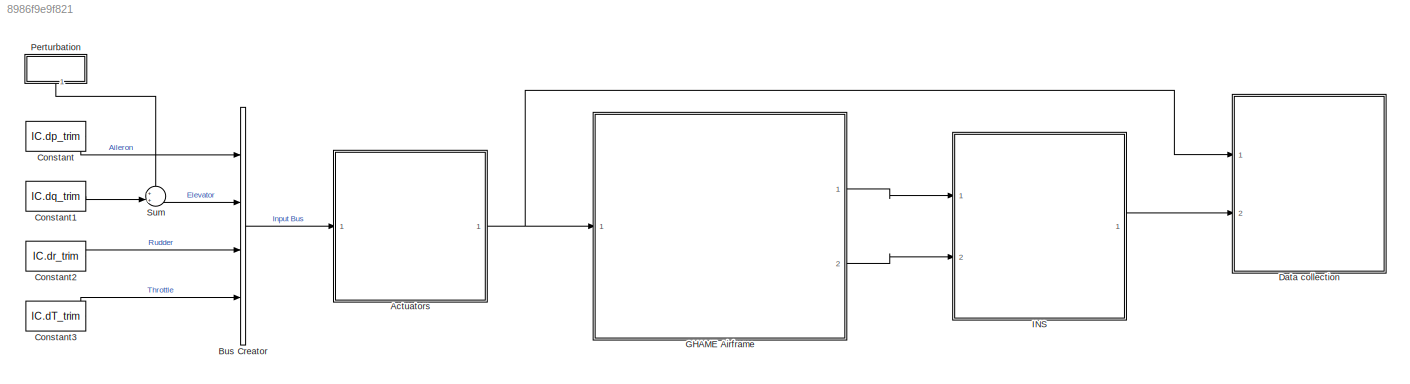
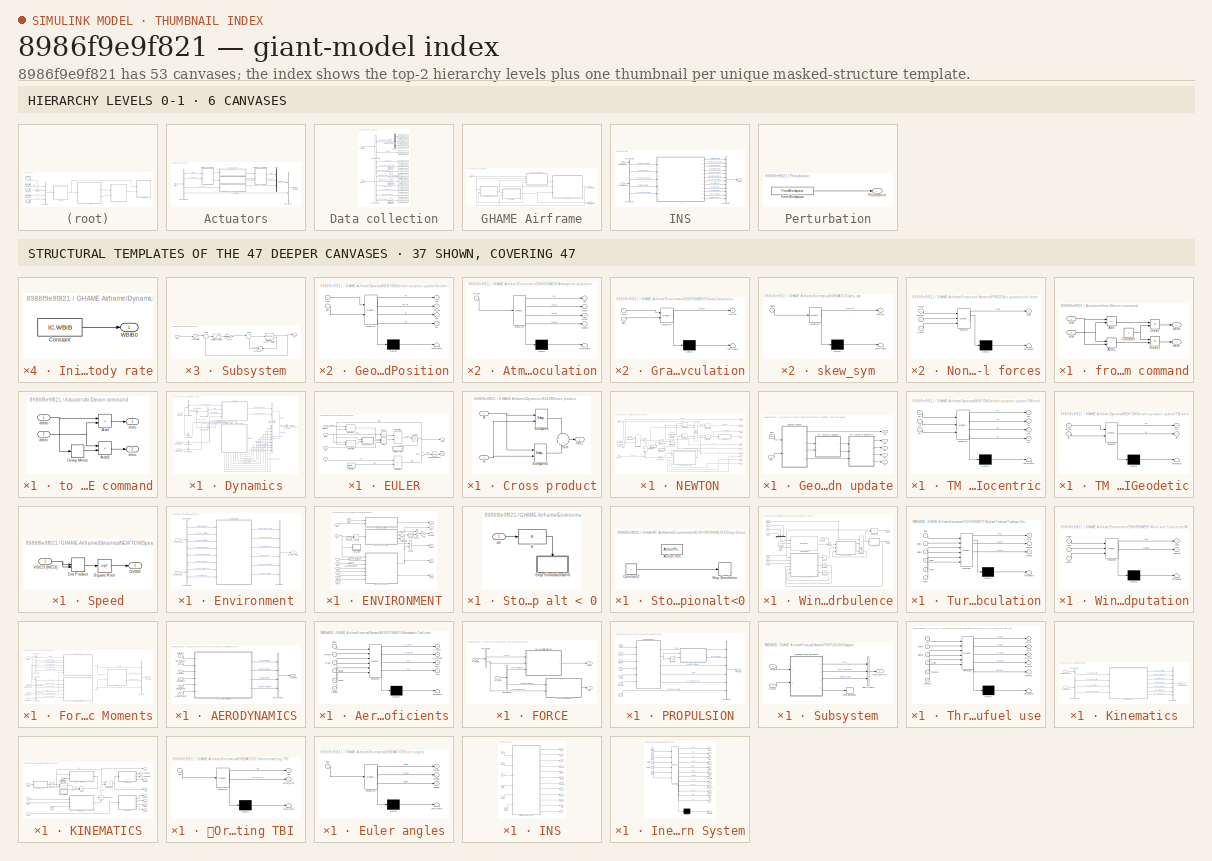
[diagram: thumbnail index - top-2 hierarchy levels (6 canvases) + 37 structural-template representatives of the remaining 47 canvases]
MODEL slx_8986f9e9f821
KIND model
CONFIG AbsTol = auto
CONFIG EnableMultiTasking = off
CONFIG FixedStep = Sim.sample_time
CONFIG MaxStep = auto
CONFIG MinStep = auto
CONFIG RelTol = 1e-3
CONFIG SampleTimeConstraint = Unconstrained
CONFIG Solver = ode2
CONFIG SolverName = ode2
CONFIG StartTime = 0.0
CONFIG StopTime = Sim.simulation.duration
BLOCK [SubSystem] Actuators
  Ports = [1, 1]
BLOCK [BusCreator] Actuators/Bus Creator
  DisplayOption = bar
  InheritFromInputs = on
  Inputs = 2
  Ports = [2, 1]
BLOCK [BusSelector] Actuators/Bus Selector
  OutputSignals = Aileron,Elevator,Rudder,Throttle
  Ports = [1, 4]
BLOCK [Outport] Actuators/Input Bus
  PortDimensions = [4]
BLOCK [Mux] Actuators/Mux
  DisplayOption = bar
  Inputs = 3
  Ports = [3, 1]
BLOCK [Inport] Actuators/Pilot
BLOCK [SubSystem] Actuators/Subsystem
  Ports = [1, 1]
BLOCK [Gain] Actuators/Subsystem/2*zeta * wn
  Gain = 2*Sim.actuator.zeta*Sim.actuator.omega
  OutDataTypeStr = Inherit: Same as input
  ParamDataTypeStr = Inherit: Same as input
  SaturateOnIntegerOverflow = on
BLOCK [Saturate] Actuators/Subsystem/Demand limits
  LowerLimit = -Sim.actuator.deflection_limit_deg*Sim.constants.RAD
  UpperLimit = Sim.actuator.deflection_limit_deg*Sim.constants.RAD
BLOCK [SecondOrderIntegrator] Actuators/Subsystem/Integrator, Second-Order Limited
  ICDXDT = 0
  ICX = IC.dp_trim+IC.dq_trim
  LimitDXDT = on
  LimitX = on
  LowerLimitDXDT = -Sim.actuator.deflection_rate_limit_deg*Sim.constants.RAD
  LowerLimitX = -Sim.actuator.deflection_limit_deg*Sim.constants.RAD
  Ports = [1, 2]
  UpperLimitDXDT = Sim.actuator.deflection_rate_limit_deg*Sim.constants.RAD
  UpperLimitX = Sim.actuator.deflection_limit_deg*Sim.constants.RAD
BLOCK [Sum] Actuators/Subsystem/Sum2
  InputSameDT = on
  Inputs = |+-
  OutDataTypeStr = Inherit: Same as first input
  Ports = [2, 1]
  SaturateOnIntegerOverflow = on
BLOCK [Sum] Actuators/Subsystem/Sum3
  InputSameDT = on
  Inputs = |+-
  OutDataTypeStr = Inherit: Same as first input
  Ports = [2, 1]
  SaturateOnIntegerOverflow = on
BLOCK [Outport] Actuators/Subsystem/elvl
BLOCK [Inport] Actuators/Subsystem/elvlc
BLOCK [Saturate] Actuators/Subsystem/rate limit*2*zeta//wn
  LowerLimit = -Sim.actuator.deflection_rate_limit_deg*2*Sim.actuator.zeta/Sim.actuator.omega*Sim.constants.RAD
  UpperLimit = Sim.actuator.deflection_rate_limit_deg*2*Sim.actuator.zeta/Sim.actuator.omega*Sim.constants.RAD
BLOCK [Gain] Actuators/Subsystem/wn^2
  Gain = Sim.actuator.omega^2
  OutDataTypeStr = Inherit: Same as input
  ParamDataTypeStr = Inherit: Same as input
  SaturateOnIntegerOverflow = on
BLOCK [SubSystem] Actuators/Subsystem1
  Ports = [1, 1]
BLOCK [Gain] Actuators/Subsystem1/2*zeta * wn
  Gain = 2*Sim.actuator.zeta*Sim.actuator.omega
  OutDataTypeStr = Inherit: Same as input
  ParamDataTypeStr = Inherit: Same as input
  SaturateOnIntegerOverflow = on
BLOCK [Saturate] Actuators/Subsystem1/Demand limits
  LowerLimit = -Sim.actuator.deflection_limit_deg*Sim.constants.RAD
  UpperLimit = Sim.actuator.deflection_limit_deg*Sim.constants.RAD
BLOCK [SecondOrderIntegrator] Actuators/Subsystem1/Integrator, Second-Order Limited
  ICDXDT = 0
  ICX = IC.dq_trim-IC.dp_trim
  LimitDXDT = on
  LimitX = on
  LowerLimitDXDT = -Sim.actuator.deflection_rate_limit_deg*Sim.constants.RAD
  LowerLimitX = -Sim.actuator.deflection_limit_deg*Sim.constants.RAD
  Ports = [1, 2]
  UpperLimitDXDT = Sim.actuator.deflection_rate_limit_deg*Sim.constants.RAD
  UpperLimitX = Sim.actuator.deflection_limit_deg*Sim.constants.RAD
BLOCK [Sum] Actuators/Subsystem1/Sum2
  InputSameDT = on
  Inputs = |+-
  OutDataTypeStr = Inherit: Same as first input
  Ports = [2, 1]
  SaturateOnIntegerOverflow = on
BLOCK [Sum] Actuators/Subsystem1/Sum3
  InputSameDT = on
  Inputs = |+-
  OutDataTypeStr = Inherit: Same as first input
  Ports = [2, 1]
  SaturateOnIntegerOverflow = on
BLOCK [Outport] Actuators/Subsystem1/elvr
BLOCK [Inport] Actuators/Subsystem1/elvrc
BLOCK [Saturate] Actuators/Subsystem1/rate limit*2*zeta//wn
  LowerLimit = -Sim.actuator.deflection_rate_limit_deg*2*Sim.actuator.zeta/Sim.actuator.omega*Sim.constants.RAD
  UpperLimit = Sim.actuator.deflection_rate_limit_deg*2*Sim.actuator.zeta/Sim.actuator.omega*Sim.constants.RAD
BLOCK [Gain] Actuators/Subsystem1/wn^2
  Gain = Sim.actuator.omega^2
  OutDataTypeStr = Inherit: Same as input
  ParamDataTypeStr = Inherit: Same as input
  SaturateOnIntegerOverflow = on
BLOCK [SubSystem] Actuators/Subsystem2
  Ports = [1, 1]
BLOCK [Gain] Actuators/Subsystem2/2*zeta * wn
  Gain = 2*Sim.actuator.zeta*Sim.actuator.omega
  OutDataTypeStr = Inherit: Same as input
  ParamDataTypeStr = Inherit: Same as input
  SaturateOnIntegerOverflow = on
BLOCK [Saturate] Actuators/Subsystem2/Demand limits
  LowerLimit = -Sim.actuator.deflection_limit_deg*Sim.constants.RAD
  UpperLimit = Sim.actuator.deflection_limit_deg*Sim.constants.RAD
BLOCK [SecondOrderIntegrator] Actuators/Subsystem2/Integrator, Second-Order Limited
  ICDXDT = 0
  ICX = IC.dr_trim
  LimitDXDT = on
  LimitX = on
  LowerLimitDXDT = -Sim.actuator.deflection_rate_limit_deg*Sim.constants.RAD
  LowerLimitX = -Sim.actuator.deflection_limit_deg*Sim.constants.RAD
  Ports = [1, 2]
  UpperLimitDXDT = Sim.actuator.deflection_rate_limit_deg*Sim.constants.RAD
  UpperLimitX = Sim.actuator.deflection_limit_deg*Sim.constants.RAD
BLOCK [Sum] Actuators/Subsystem2/Sum2
  InputSameDT = on
  Inputs = |+-
  OutDataTypeStr = Inherit: Same as first input
  Ports = [2, 1]
  SaturateOnIntegerOverflow = on
BLOCK [Sum] Actuators/Subsystem2/Sum3
  InputSameDT = on
  Inputs = |+-
  OutDataTypeStr = Inherit: Same as first input
  Ports = [2, 1]
  SaturateOnIntegerOverflow = on
BLOCK [Outport] Actuators/Subsystem2/delr
BLOCK [Inport] Actuators/Subsystem2/delrc
BLOCK [Saturate] Actuators/Subsystem2/rate limit*2*zeta//wn
  LowerLimit = -Sim.actuator.deflection_rate_limit_deg*2*Sim.actuator.zeta/Sim.actuator.omega*Sim.constants.RAD
  UpperLimit = Sim.actuator.deflection_rate_limit_deg*2*Sim.actuator.zeta/Sim.actuator.omega*Sim.constants.RAD
BLOCK [Gain] Actuators/Subsystem2/wn^2
  Gain = Sim.actuator.omega^2
  OutDataTypeStr = Inherit: Same as input
  ParamDataTypeStr = Inherit: Same as input
  SaturateOnIntegerOverflow = on
BLOCK [SubSystem] Actuators/from Elevon command
  Ports = [2, 2]
BLOCK [Sum] Actuators/from Elevon command/Add
  IconShape = rectangular
  Inputs = +-
  Ports = [2, 1]
BLOCK [Sum] Actuators/from Elevon command/Add1
  IconShape = rectangular
  Ports = [2, 1]
BLOCK [Constant] Actuators/from Elevon command/Constant
  Value = 2
BLOCK [Product] Actuators/from Elevon command/Divide
  Inputs = */
  Ports = [2, 1]
BLOCK [Product] Actuators/from Elevon command/Divide1
  Inputs = /*
  Ports = [2, 1]
BLOCK [Outport] Actuators/from Elevon command/dela
BLOCK [Outport] Actuators/from Elevon command/dele
  Port = 2
BLOCK [Inport] Actuators/from Elevon command/elvl
BLOCK [Inport] Actuators/from Elevon command/elvr
  Port = 2
BLOCK [SubSystem] Actuators/to Elevon command
  Ports = [2, 2]
BLOCK [Sum] Actuators/to Elevon command/Add
  IconShape = rectangular
  Ports = [2, 1]
BLOCK [Sum] Actuators/to Elevon command/Add1
  IconShape = rectangular
  Ports = [2, 1]
BLOCK [UnaryMinus] Actuators/to Elevon command/Unary Minus
BLOCK [Inport] Actuators/to Elevon command/delac
BLOCK [Inport] Actuators/to Elevon command/delec
  Port = 2
BLOCK [Outport] Actuators/to Elevon command/elvlc
BLOCK [Outport] Actuators/to Elevon command/elvrc
  Port = 2
BLOCK [BusCreator] Bus Creator
  DisplayOption = bar
  InheritFromInputs = on
  Inputs = 4
  Ports = [4, 1]
BLOCK [Constant] Constant
  SampleTime = 0
  Value = IC.dp_trim
BLOCK [Constant] Constant1
  SampleTime = 0
  Value = IC.dq_trim
BLOCK [Constant] Constant2
  SampleTime = 0
  Value = IC.dr_trim
BLOCK [Constant] Constant3
  SampleTime = 0
  Value = IC.dT_trim
BLOCK [SubSystem] Data collection
  Ports = [2]
BLOCK [BusSelector] Data collection/Bus Selector
  OutputSignals = Geod: altitude (m),Geographic speed (m/s),Heading angle (rad),Flight-path angle (rad),Inertial rates [FRD] (rad/s),Normal load factor,Angle of attack (deg),Side slip angle (deg),Bank angle (rad)
  Ports = [1, 9]
BLOCK [BusSelector] Data collection/Bus Selector1
  OutputSignals = Deflections (rad),Throttle
  Ports = [1, 2]
BLOCK [Demux] Data collection/Demux
  Outputs = 3
  Ports = [1, 3]
BLOCK [Inport] Data collection/INS Bus
  Port = 2
BLOCK [Inport] Data collection/Input Bus
BLOCK [Reference] Data collection/Radians to Degrees  REF=simulink_extras/Transformations/Radians
to Degrees
  Ports = [1, 1]
  SourceBlock = simulink_extras/Transformations/Radians\nto Degrees
  SourceType = RadiansToDegrees
BLOCK [Reference] Data collection/Radians to Degrees1  REF=simulink_extras/Transformations/Radians
to Degrees
  Ports = [1, 1]
  SourceBlock = simulink_extras/Transformations/Radians\nto Degrees
  SourceType = RadiansToDegrees
BLOCK [Reference] Data collection/Radians to Degrees2  REF=simulink_extras/Transformations/Radians
to Degrees
  Ports = [1, 1]
  SourceBlock = simulink_extras/Transformations/Radians\nto Degrees
  SourceType = RadiansToDegrees
BLOCK [Reference] Data collection/Radians to Degrees3  REF=simulink_extras/Transformations/Radians
to Degrees
  Ports = [1, 1]
  SourceBlock = simulink_extras/Transformations/Radians\nto Degrees
  SourceType = RadiansToDegrees
BLOCK [Reference] Data collection/Radians to Degrees4  REF=simulink_extras/Transformations/Radians
to Degrees
  Ports = [1, 1]
  SourceBlock = simulink_extras/Transformations/Radians\nto Degrees
  SourceType = RadiansToDegrees
BLOCK [ToWorkspace] Data collection/To Workspace
  FixptAsFi = on
  MaxDataPoints = inf
  Ports = [1]
  SampleTime = Sim.sample_time
  VariableName = Altitude
BLOCK [ToWorkspace] Data collection/To Workspace1
  FixptAsFi = on
  MaxDataPoints = inf
  Ports = [1]
  SampleTime = Sim.sample_time
  VariableName = Alpha
BLOCK [ToWorkspace] Data collection/To Workspace10
  FixptAsFi = on
  MaxDataPoints = inf
  Ports = [1]
  SampleTime = Sim.sample_time
  VariableName = Elevator
BLOCK [ToWorkspace] Data collection/To Workspace11
  FixptAsFi = on
  MaxDataPoints = inf
  Ports = [1]
  SampleTime = Sim.sample_time
  VariableName = Aileron
BLOCK [ToWorkspace] Data collection/To Workspace12
  FixptAsFi = on
  MaxDataPoints = inf
  Ports = [1]
  SampleTime = Sim.sample_time
  VariableName = Rudder
BLOCK [ToWorkspace] Data collection/To Workspace2
  FixptAsFi = on
  MaxDataPoints = inf
  Ports = [1]
  SampleTime = Sim.sample_time
  VariableName = Sideslip
BLOCK [ToWorkspace] Data collection/To Workspace3
  FixptAsFi = on
  MaxDataPoints = inf
  Ports = [1]
  SampleTime = Sim.sample_time
  VariableName = Speed
BLOCK [ToWorkspace] Data collection/To Workspace4
  FixptAsFi = on
  MaxDataPoints = inf
  Ports = [1]
  SampleTime = Sim.sample_time
  VariableName = Heading
BLOCK [ToWorkspace] Data collection/To Workspace5
  FixptAsFi = on
  MaxDataPoints = inf
  Ports = [1]
  SampleTime = Sim.sample_time
  VariableName = Flight_Path
BLOCK [ToWorkspace] Data collection/To Workspace6
  FixptAsFi = on
  MaxDataPoints = inf
  Ports = [1]
  SampleTime = Sim.sample_time
  VariableName = Bank
BLOCK [ToWorkspace] Data collection/To Workspace7
  FixptAsFi = on
  MaxDataPoints = inf
  Ports = [1]
  SampleTime = Sim.sample_time
  VariableName = Rates
BLOCK [ToWorkspace] Data collection/To Workspace8
  FixptAsFi = on
  MaxDataPoints = inf
  Ports = [1]
  SampleTime = Sim.sample_time
  VariableName = Throttle
BLOCK [ToWorkspace] Data collection/To Workspace9
  FixptAsFi = on
  MaxDataPoints = inf
  Ports = [1]
  SampleTime = Sim.sample_time
  VariableName = nz
BLOCK [SubSystem] GHAME Airframe
  Ports = [1, 2]
BLOCK [SubSystem] GHAME Airframe/Dynamics
  Ports = [3, 1]
  Priority = 4
BLOCK [Outport] GHAME Airframe/Dynamics Bus
BLOCK [BusCreator] GHAME Airframe/Dynamics/Bus Creator
  DisplayOption = bar
  InheritFromInputs = on
  Inputs = 10
  Ports = [10, 1]
BLOCK [BusCreator] GHAME Airframe/Dynamics/Bus Creator1
  DisplayOption = bar
  InheritFromInputs = on
  Inputs = 2
  Ports = [2, 1]
BLOCK [BusCreator] GHAME Airframe/Dynamics/Bus Creator2
  DisplayOption = bar
  InheritFromInputs = on
  Inputs = 2
  Ports = [2, 1]
BLOCK [BusSelector] GHAME Airframe/Dynamics/Bus Selector
  OutputSignals = TM of body wrt inertial coord:
  Ports = [1, 1]
BLOCK [BusSelector] GHAME Airframe/Dynamics/Bus Selector1
  OutputSignals = Grav: acc: in geocentric coord:
  Ports = [1, 1]
BLOCK [BusSelector] GHAME Airframe/Dynamics/Bus Selector2
  OutputSignals = Aerodynamic moments,Prop: data
  Ports = [1, 2]
BLOCK [BusSelector] GHAME Airframe/Dynamics/Bus Selector3
  OutputSignals = Mass and MOI
  Ports = [1, 1]
BLOCK [BusSelector] GHAME Airframe/Dynamics/Bus Selector4
  OutputSignals = Aero-propulsive forces
  Ports = [1, 1]
BLOCK [BusSelector] GHAME Airframe/Dynamics/Bus Selector5
  OutputSignals = MOI,MOI derivative
  Ports = [1, 2]
BLOCK [BusSelector] GHAME Airframe/Dynamics/Bus Selector6
  OutputSignals = Vehicle mass
  Ports = [1, 1]
BLOCK [Outport] GHAME Airframe/Dynamics/Dynamics Bus
BLOCK [SubSystem] GHAME Airframe/Dynamics/EULER
  Ports = [4, 2]
BLOCK [SubSystem] GHAME Airframe/Dynamics/EULER/Cross product
  Ports = [2, 1]
BLOCK [Inport] GHAME Airframe/Dynamics/EULER/Cross product/A
BLOCK [Inport] GHAME Airframe/Dynamics/EULER/Cross product/B
  Port = 2
BLOCK [Outport] GHAME Airframe/Dynamics/EULER/Cross product/Out1
BLOCK [Reference] GHAME Airframe/Dynamics/EULER/Cross product/Subsystem  REF=sharedutil/3x3 Cross Product/Subsystem
  Ports = [2, 1]
  SourceBlock = sharedutil/3x3 Cross Product/Subsystem
  SourceType = SubSystem
BLOCK [Reference] GHAME Airframe/Dynamics/EULER/Cross product/Subsystem1  REF=sharedutil/3x3 Cross Product/Subsystem1
  Ports = [2, 1]
  SourceBlock = sharedutil/3x3 Cross Product/Subsystem1
  SourceType = SubSystem
BLOCK [Sum] GHAME Airframe/Dynamics/EULER/Cross product/Sum
  InputSameDT = on
  Inputs = +|-
  OutDataTypeStr = Inherit: Same as first input
  Ports = [2, 1]
  SaturateOnIntegerOverflow = on
BLOCK [Constant] GHAME Airframe/Dynamics/EULER/Earth rotation
  Value = [0; 0; IC.WEII3]
BLOCK [Inport] GHAME Airframe/Dynamics/EULER/FMB
BLOCK [Inport] GHAME Airframe/Dynamics/EULER/IBBB
  Port = 2
BLOCK [Inport] GHAME Airframe/Dynamics/EULER/IBBBdot
  Port = 3
BLOCK [SubSystem] GHAME Airframe/Dynamics/EULER/Initial body rate
  Ports = [0, 1]
BLOCK [Constant] GHAME Airframe/Dynamics/EULER/Initial body rate/Constant
  Value = IC.WBIB
BLOCK [Outport] GHAME Airframe/Dynamics/EULER/Initial body rate/WBIB0
BLOCK [Integrator] GHAME Airframe/Dynamics/EULER/Integrate
  InitialCondition = v0_BE_B
  InitialConditionSource = external
  Ports = [2, 1]
BLOCK [Product] GHAME Airframe/Dynamics/EULER/Matrix Multiply
  Multiplication = Matrix(*)
  Ports = [2, 1]
BLOCK [Product] GHAME Airframe/Dynamics/EULER/Matrix Multiply1
  Multiplication = Matrix(*)
  Ports = [2, 1]
BLOCK [Product] GHAME Airframe/Dynamics/EULER/Matrix Multiply2
  Multiplication = Matrix(*)
  Ports = [2, 1]
BLOCK [Product] GHAME Airframe/Dynamics/EULER/Matrix Multiply3
  Multiplication = Matrix(*)
  Ports = [2, 1]
BLOCK [Sum] GHAME Airframe/Dynamics/EULER/Minus
  IconShape = rectangular
  Inputs = --+
  Ports = [3, 1]
BLOCK [Product] GHAME Airframe/Dynamics/EULER/Product
  Inputs = /
  Multiplication = Matrix(*)
  OutDataTypeStr = Inherit: Same as first input
  Ports = [1, 1]
  SaturateOnIntegerOverflow = on
BLOCK [Reference] GHAME Airframe/Dynamics/EULER/Radians to Degrees  REF=simulink_extras/Transformations/Radians
to Degrees
  Ports = [1, 1]
  SourceBlock = simulink_extras/Transformations/Radians\nto Degrees
  SourceType = RadiansToDegrees
BLOCK [Sum] GHAME Airframe/Dynamics/EULER/Sum
  Inputs = +-
  Ports = [2, 1]
BLOCK [Inport] GHAME Airframe/Dynamics/EULER/TBI
  Port = 4
BLOCK [Outport] GHAME Airframe/Dynamics/EULER/WBEBx
  Port = 2
BLOCK [Outport] GHAME Airframe/Dynamics/EULER/WBIB 
BLOCK [Inport] GHAME Airframe/Dynamics/Environment Bus
  Port = 2
BLOCK [Inport] GHAME Airframe/Dynamics/Force Bus
BLOCK [Inport] GHAME Airframe/Dynamics/Kinematics Bus
  Port = 3
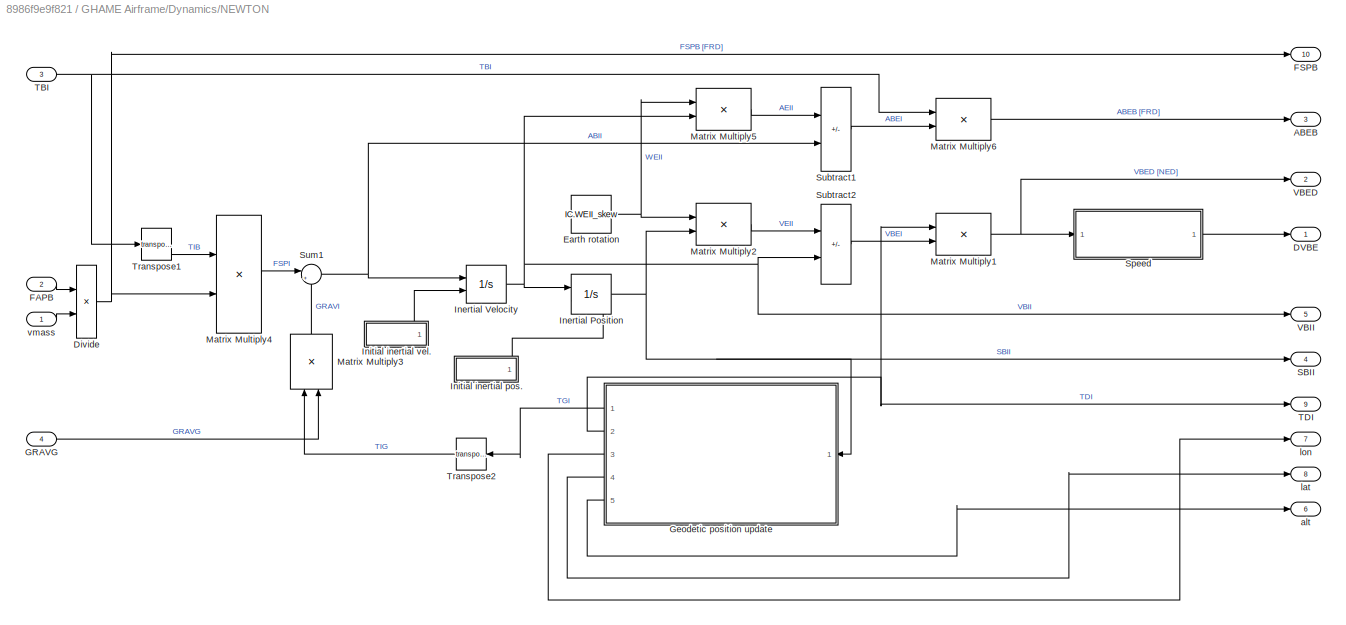
BLOCK [SubSystem] GHAME Airframe/Dynamics/NEWTON
  Ports = [4, 10]
BLOCK [Outport] GHAME Airframe/Dynamics/NEWTON/ABEB
  Port = 3
BLOCK [Outport] GHAME Airframe/Dynamics/NEWTON/DVBE
BLOCK [Product] GHAME Airframe/Dynamics/NEWTON/Divide
  Inputs = */
  Ports = [2, 1]
BLOCK [Constant] GHAME Airframe/Dynamics/NEWTON/Earth rotation
  Value = IC.WEII_skew
BLOCK [Inport] GHAME Airframe/Dynamics/NEWTON/FAPB
  Port = 2
BLOCK [Outport] GHAME Airframe/Dynamics/NEWTON/FSPB
  Port = 10
BLOCK [Inport] GHAME Airframe/Dynamics/NEWTON/GRAVG
  Port = 4
BLOCK [SubSystem] GHAME Airframe/Dynamics/NEWTON/Geodetic position update
  Ports = [1, 5]
BLOCK [Clock] GHAME Airframe/Dynamics/NEWTON/Geodetic position update/Clock
  DisplayTime = on
BLOCK [SubSystem] GHAME Airframe/Dynamics/NEWTON/Geodetic position update/Geodetic Position
  ErrorFcn = Stateflow.Translate.translate
  PermitHierarchicalResolution = ExplicitOnly
  Ports = [2, 4]
  SFBlockType = MATLAB Function
  TreatAsAtomicUnit = on
BLOCK [Demux] GHAME Airframe/Dynamics/NEWTON/Geodetic position update/Geodetic Position/ Demux 
  Outputs = 1
  Ports = [1, 1]
BLOCK [S-Function] GHAME Airframe/Dynamics/NEWTON/Geodetic position update/Geodetic Position/ SFunction 
  EnableBusSupport = off
  FunctionName = sf_sfun
  Parameters = IC,Sim
  PortCounts = [2 5]
  Ports = [2, 5]
  SFcnIsStateOwnerBlock = off
  SFunctionDeploymentMode = off
  Tag = Stateflow S-Function GHAME_Model_2018b 21
BLOCK [Terminator] GHAME Airframe/Dynamics/NEWTON/Geodetic position update/Geodetic Position/ Terminator 
BLOCK [Inport] GHAME Airframe/Dynamics/NEWTON/Geodetic position update/Geodetic Position/SBII
  Port = 2
BLOCK [Outport] GHAME Airframe/Dynamics/NEWTON/Geodetic position update/Geodetic Position/alt
  Port = 4
BLOCK [Outport] GHAME Airframe/Dynamics/NEWTON/Geodetic position update/Geodetic Position/lat
  Port = 3
BLOCK [Outport] GHAME Airframe/Dynamics/NEWTON/Geodetic position update/Geodetic Position/lon
BLOCK [Outport] GHAME Airframe/Dynamics/NEWTON/Geodetic position update/Geodetic Position/lon_cel
  Port = 2
BLOCK [Inport] GHAME Airframe/Dynamics/NEWTON/Geodetic position update/Geodetic Position/time
BLOCK [Inport] GHAME Airframe/Dynamics/NEWTON/Geodetic position update/SBII
BLOCK [Outport] GHAME Airframe/Dynamics/NEWTON/Geodetic position update/TDI
  Port = 2
BLOCK [Outport] GHAME Airframe/Dynamics/NEWTON/Geodetic position update/TGI
BLOCK [SubSystem] GHAME Airframe/Dynamics/NEWTON/Geodetic position update/TM Inertial to Geocentric
  ErrorFcn = Stateflow.Translate.translate
  PermitHierarchicalResolution = ExplicitOnly
  Ports = [3, 4]
  SFBlockType = MATLAB Function
  TreatAsAtomicUnit = on
BLOCK [Demux] GHAME Airframe/Dynamics/NEWTON/Geodetic position update/TM Inertial to Geocentric/ Demux 
  Outputs = 1
  Ports = [1, 1]
BLOCK [S-Function] GHAME Airframe/Dynamics/NEWTON/Geodetic position update/TM Inertial to Geocentric/ SFunction 
  EnableBusSupport = off
  FunctionName = sf_sfun
  Parameters = Sim
  PortCounts = [3 5]
  Ports = [3, 5]
  SFcnIsStateOwnerBlock = off
  SFunctionDeploymentMode = off
  Tag = Stateflow S-Function GHAME_Model_2018b 22
BLOCK [Terminator] GHAME Airframe/Dynamics/NEWTON/Geodetic position update/TM Inertial to Geocentric/ Terminator 
BLOCK [Outport] GHAME Airframe/Dynamics/NEWTON/Geodetic position update/TM Inertial to Geocentric/TDI
  Port = 2
BLOCK [Inport] GHAME Airframe/Dynamics/NEWTON/Geodetic position update/TM Inertial to Geocentric/TDI 
BLOCK [Outport] GHAME Airframe/Dynamics/NEWTON/Geodetic position update/TM Inertial to Geocentric/TGI
BLOCK [Outport] GHAME Airframe/Dynamics/NEWTON/Geodetic position update/TM Inertial to Geocentric/alt
  Port = 4
BLOCK [Inport] GHAME Airframe/Dynamics/NEWTON/Geodetic position update/TM Inertial to Geocentric/alt 
  Port = 3
BLOCK [Outport] GHAME Airframe/Dynamics/NEWTON/Geodetic position update/TM Inertial to Geocentric/lat
  Port = 3
BLOCK [Inport] GHAME Airframe/Dynamics/NEWTON/Geodetic position update/TM Inertial to Geocentric/lat 
  Port = 2
BLOCK [SubSystem] GHAME Airframe/Dynamics/NEWTON/Geodetic position update/TM Inertial to Geodetic
  ErrorFcn = Stateflow.Translate.translate
  PermitHierarchicalResolution = ExplicitOnly
  Ports = [2, 2]
  SFBlockType = MATLAB Function
  TreatAsAtomicUnit = on
BLOCK [Demux] GHAME Airframe/Dynamics/NEWTON/Geodetic position update/TM Inertial to Geodetic/ Demux 
  Outputs = 1
  Ports = [1, 1]
BLOCK [S-Function] GHAME Airframe/Dynamics/NEWTON/Geodetic position update/TM Inertial to Geodetic/ SFunction 
  EnableBusSupport = off
  FunctionName = sf_sfun
  PortCounts = [2 3]
  Ports = [2, 3]
  SFcnIsStateOwnerBlock = off
  SFunctionDeploymentMode = off
  Tag = Stateflow S-Function GHAME_Model_2018b 23
BLOCK [Terminator] GHAME Airframe/Dynamics/NEWTON/Geodetic position update/TM Inertial to Geodetic/ Terminator 
BLOCK [Outport] GHAME Airframe/Dynamics/NEWTON/Geodetic position update/TM Inertial to Geodetic/TDI
BLOCK [Outport] GHAME Airframe/Dynamics/NEWTON/Geodetic position update/TM Inertial to Geodetic/lat
  Port = 2
BLOCK [Inport] GHAME Airframe/Dynamics/NEWTON/Geodetic position update/TM Inertial to Geodetic/lat 
  Port = 2
BLOCK [Inport] GHAME Airframe/Dynamics/NEWTON/Geodetic position update/TM Inertial to Geodetic/lon_cel
BLOCK [Outport] GHAME Airframe/Dynamics/NEWTON/Geodetic position update/alt
  Port = 5
BLOCK [Outport] GHAME Airframe/Dynamics/NEWTON/Geodetic position update/lat
  Port = 4
BLOCK [Outport] GHAME Airframe/Dynamics/NEWTON/Geodetic position update/lon
  Port = 3
BLOCK [Integrator] GHAME Airframe/Dynamics/NEWTON/Inertial Position
  InitialCondition = IC.SBII
  InitialConditionSource = external
  Ports = [2, 1]
BLOCK [Integrator] GHAME Airframe/Dynamics/NEWTON/Inertial Velocity
  InitialCondition = v0_BE_B
  InitialConditionSource = external
  Ports = [2, 1]
BLOCK [SubSystem] GHAME Airframe/Dynamics/NEWTON/Initial inertial pos.
  Ports = [0, 1]
BLOCK [Constant] GHAME Airframe/Dynamics/NEWTON/Initial inertial pos./Constant
  Value = IC.SBII
BLOCK [Outport] GHAME Airframe/Dynamics/NEWTON/Initial inertial pos./SBII0
BLOCK [SubSystem] GHAME Airframe/Dynamics/NEWTON/Initial inertial vel.
  Ports = [0, 1]
BLOCK [Constant] GHAME Airframe/Dynamics/NEWTON/Initial inertial vel./Constant
  Value = IC.VBII
BLOCK [Outport] GHAME Airframe/Dynamics/NEWTON/Initial inertial vel./VBII0
BLOCK [Product] GHAME Airframe/Dynamics/NEWTON/Matrix Multiply1
  Multiplication = Matrix(*)
  Ports = [2, 1]
BLOCK [Product] GHAME Airframe/Dynamics/NEWTON/Matrix Multiply2
  Multiplication = Matrix(*)
  Ports = [2, 1]
BLOCK [Product] GHAME Airframe/Dynamics/NEWTON/Matrix Multiply3
  Multiplication = Matrix(*)
  Ports = [2, 1]
BLOCK [Product] GHAME Airframe/Dynamics/NEWTON/Matrix Multiply4
  Multiplication = Matrix(*)
  Ports = [2, 1]
BLOCK [Product] GHAME Airframe/Dynamics/NEWTON/Matrix Multiply5
  Multiplication = Matrix(*)
  Ports = [2, 1]
BLOCK [Product] GHAME Airframe/Dynamics/NEWTON/Matrix Multiply6
  Multiplication = Matrix(*)
  Ports = [2, 1]
BLOCK [Outport] GHAME Airframe/Dynamics/NEWTON/SBII 
  Port = 4
BLOCK [SubSystem] GHAME Airframe/Dynamics/NEWTON/Speed
  Ports = [1, 1]
BLOCK [Outport] GHAME Airframe/Dynamics/NEWTON/Speed/DVBE
BLOCK [DotProduct] GHAME Airframe/Dynamics/NEWTON/Speed/Dot Product
  OutDataTypeStr = Inherit: Inherit via internal rule
BLOCK [Sqrt] GHAME Airframe/Dynamics/NEWTON/Speed/Square Root
BLOCK [Inport] GHAME Airframe/Dynamics/NEWTON/Speed/VBED [NED]
BLOCK [Sum] GHAME Airframe/Dynamics/NEWTON/Subtract1
  IconShape = rectangular
  Inputs = -+
  Ports = [2, 1]
BLOCK [Sum] GHAME Airframe/Dynamics/NEWTON/Subtract2
  IconShape = rectangular
  Inputs = -+
  Ports = [2, 1]
BLOCK [Sum] GHAME Airframe/Dynamics/NEWTON/Sum1
  Inputs = |++
  Ports = [2, 1]
BLOCK [Inport] GHAME Airframe/Dynamics/NEWTON/TBI
  Port = 3
BLOCK [Outport] GHAME Airframe/Dynamics/NEWTON/TDI
  Port = 9
BLOCK [Math] GHAME Airframe/Dynamics/NEWTON/Transpose1
  Operator = transpose
  Ports = [1, 1]
BLOCK [Math] GHAME Airframe/Dynamics/NEWTON/Transpose2
  Operator = transpose
  Ports = [1, 1]
BLOCK [Outport] GHAME Airframe/Dynamics/NEWTON/VBED
  Port = 2
BLOCK [Outport] GHAME Airframe/Dynamics/NEWTON/VBII
  Port = 5
BLOCK [Outport] GHAME Airframe/Dynamics/NEWTON/alt
  Port = 6
BLOCK [Outport] GHAME Airframe/Dynamics/NEWTON/lat
  Port = 8
BLOCK [Outport] GHAME Airframe/Dynamics/NEWTON/lon
  Port = 7
BLOCK [Inport] GHAME Airframe/Dynamics/NEWTON/vmass
BLOCK [SubSystem] GHAME Airframe/Environment
  Ports = [2, 1]
  Priority = 1
BLOCK [BusCreator] GHAME Airframe/Environment/Bus Creator
  DisplayOption = bar
  InheritFromInputs = on
  Inputs = 6
  Ports = [6, 1]
BLOCK [BusSelector] GHAME Airframe/Environment/Bus Selector
  OutputSignals = Newton Bus.Inertial position (m),Newton Bus.Vehicle geod: altitude (m),Newton Bus.Vehicle geod: latitude (rad),Newton Bus.Vehicle longitude (rad),Newton Bus.Geographic velocity [NED] (m/s)
  Ports = [1, 5]
BLOCK [BusSelector] GHAME Airframe/Environment/Bus Selector1
  OutputSignals = Total angle of attack (deg),TM of body wrt geodetic coord:,Aeroballistic roll angle (deg)
  Ports = [1, 3]
BLOCK [Inport] GHAME Airframe/Environment/Dynamics Bus
BLOCK [SubSystem] GHAME Airframe/Environment/ENVIRONMENT
  Ports = [8, 6]
  Priority = 1
BLOCK [SubSystem] GHAME Airframe/Environment/ENVIRONMENT/Atmosphere calculation
  ErrorFcn = Stateflow.Translate.translate
  PermitHierarchicalResolution = ExplicitOnly
  Ports = [1, 4]
  Priority = 2
  SFBlockType = MATLAB Function
  TreatAsAtomicUnit = on
BLOCK [Demux] GHAME Airframe/Environment/ENVIRONMENT/Atmosphere calculation/ Demux 
  Outputs = 1
  Ports = [1, 1]
BLOCK [S-Function] GHAME Airframe/Environment/ENVIRONMENT/Atmosphere calculation/ SFunction 
  EnableBusSupport = off
  FunctionName = sf_sfun
  PortCounts = [1 5]
  Ports = [1, 5]
  SFcnIsStateOwnerBlock = off
  SFunctionDeploymentMode = off
  Tag = Stateflow S-Function GHAME_Model_2018b 18
BLOCK [Terminator] GHAME Airframe/Environment/ENVIRONMENT/Atmosphere calculation/ Terminator 
BLOCK [Inport] GHAME Airframe/Environment/ENVIRONMENT/Atmosphere calculation/alt_km
BLOCK [Outport] GHAME Airframe/Environment/ENVIRONMENT/Atmosphere calculation/press
  Port = 2
BLOCK [Outport] GHAME Airframe/Environment/ENVIRONMENT/Atmosphere calculation/rho
BLOCK [Outport] GHAME Airframe/Environment/ENVIRONMENT/Atmosphere calculation/tempk
  Port = 3
BLOCK [Outport] GHAME Airframe/Environment/ENVIRONMENT/Atmosphere calculation/vsound
  Port = 4
BLOCK [Clock] GHAME Airframe/Environment/ENVIRONMENT/Clock
  Priority = 1
BLOCK [Constant] GHAME Airframe/Environment/ENVIRONMENT/Constant2
  Value = 1000
BLOCK [Outport] GHAME Airframe/Environment/ENVIRONMENT/DVBA
  Port = 5
BLOCK [Outport] GHAME Airframe/Environment/ENVIRONMENT/GRAVG
BLOCK [Gain] GHAME Airframe/Environment/ENVIRONMENT/Gain
  Gain = 0.5
BLOCK [SubSystem] GHAME Airframe/Environment/ENVIRONMENT/Gravity Calculation
  ErrorFcn = Stateflow.Translate.translate
  PermitHierarchicalResolution = ExplicitOnly
  Ports = [2, 1]
  Priority = 1
  SFBlockType = MATLAB Function
  TreatAsAtomicUnit = on
BLOCK [Demux] GHAME Airframe/Environment/ENVIRONMENT/Gravity Calculation/ Demux 
  Outputs = 1
  Ports = [1, 1]
BLOCK [S-Function] GHAME Airframe/Environment/ENVIRONMENT/Gravity Calculation/ SFunction 
  EnableBusSupport = off
  FunctionName = sf_sfun
  Parameters = IC,Sim
  PortCounts = [2 2]
  Ports = [2, 2]
  SFcnIsStateOwnerBlock = off
  SFunctionDeploymentMode = off
  Tag = Stateflow S-Function GHAME_Model_2018b 15
BLOCK [Terminator] GHAME Airframe/Environment/ENVIRONMENT/Gravity Calculation/ Terminator 
BLOCK [Outport] GHAME Airframe/Environment/ENVIRONMENT/Gravity Calculation/GRAVG
BLOCK [Inport] GHAME Airframe/Environment/ENVIRONMENT/Gravity Calculation/SBII
  Port = 2
BLOCK [Inport] GHAME Airframe/Environment/ENVIRONMENT/Gravity Calculation/time
BLOCK [Product] GHAME Airframe/Environment/ENVIRONMENT/Product
  Ports = [2, 1]
BLOCK [Reference] GHAME Airframe/Environment/ENVIRONMENT/Radians to Degrees  REF=simulink_extras/Transformations/Radians
to Degrees
  Ports = [1, 1]
  SourceBlock = simulink_extras/Transformations/Radians\nto Degrees
  SourceType = RadiansToDegrees
BLOCK [Reference] GHAME Airframe/Environment/ENVIRONMENT/Radians to Degrees1  REF=simulink_extras/Transformations/Radians
to Degrees
  Ports = [1, 1]
  SourceBlock = simulink_extras/Transformations/Radians\nto Degrees
  SourceType = RadiansToDegrees
BLOCK [Inport] GHAME Airframe/Environment/ENVIRONMENT/SBII
BLOCK [Math] GHAME Airframe/Environment/ENVIRONMENT/Square
  Operator = square
  Ports = [1, 1]
BLOCK [SubSystem] GHAME Airframe/Environment/ENVIRONMENT/Stop Simulation when alt < 0
  Ports = [1]
BLOCK [If] GHAME Airframe/Environment/ENVIRONMENT/Stop Simulation when alt < 0/If
  IfExpression = u1 <= 25
  Ports = [1, 1]
  ShowElse = off
BLOCK [SubSystem] GHAME Airframe/Environment/ENVIRONMENT/Stop Simulation when alt < 0/Stop Simulationalt<0
  Ports = [0, 0, 0, 0, 0, 0, 0, 1]
  TreatAsAtomicUnit = on
BLOCK [ActionPort] GHAME Airframe/Environment/ENVIRONMENT/Stop Simulation when alt < 0/Stop Simulationalt<0/Action Port
BLOCK [Constant] GHAME Airframe/Environment/ENVIRONMENT/Stop Simulation when alt < 0/Stop Simulationalt<0/Constant2
BLOCK [Stop] GHAME Airframe/Environment/ENVIRONMENT/Stop Simulation when alt < 0/Stop Simulationalt<0/Stop Simulation
BLOCK [Inport] GHAME Airframe/Environment/ENVIRONMENT/Stop Simulation when alt < 0/alt
BLOCK [Inport] GHAME Airframe/Environment/ENVIRONMENT/TBD
  Port = 7
BLOCK [Terminator] GHAME Airframe/Environment/ENVIRONMENT/Terminator
BLOCK [Terminator] GHAME Airframe/Environment/ENVIRONMENT/Terminator2
BLOCK [Outport] GHAME Airframe/Environment/ENVIRONMENT/VBAB
  Port = 6
BLOCK [Inport] GHAME Airframe/Environment/ENVIRONMENT/VBED
  Port = 5
BLOCK [SubSystem] GHAME Airframe/Environment/ENVIRONMENT/Wind and Turbulence
  Ports = [7, 2]
BLOCK [Clock] GHAME Airframe/Environment/ENVIRONMENT/Wind and Turbulence/Clock
BLOCK [Constant] GHAME Airframe/Environment/ENVIRONMENT/Wind and Turbulence/Constant
  Value = [0;0]
BLOCK [Constant] GHAME Airframe/Environment/ENVIRONMENT/Wind and Turbulence/Constant1
  Value = 25
BLOCK [Outport] GHAME Airframe/Environment/ENVIRONMENT/Wind and Turbulence/DVBA
BLOCK [WindHWM14] GHAME Airframe/Environment/ENVIRONMENT/Wind and Turbulence/Horizontal Wind
  Commented = on
  Ports = [3, 1]
BLOCK [Integrator] GHAME Airframe/Environment/ENVIRONMENT/Wind and Turbulence/Integrator
  Ports = [1, 1]
BLOCK [Integrator] GHAME Airframe/Environment/ENVIRONMENT/Wind and Turbulence/Integrator1
  Ports = [1, 1]
BLOCK [Integrator] GHAME Airframe/Environment/ENVIRONMENT/Wind and Turbulence/Integrator2
  InitialCondition = [0; 0; 0]
  Ports = [1, 1]
BLOCK [SubSystem] GHAME Airframe/Environment/ENVIRONMENT/Wind and Turbulence/Magnitude
  ErrorFcn = Stateflow.Translate.translate
  PermitHierarchicalResolution = ExplicitOnly
  Ports = [1, 1]
  SFBlockType = MATLAB Function
  TreatAsAtomicUnit = on
BLOCK [Demux] GHAME Airframe/Environment/ENVIRONMENT/Wind and Turbulence/Magnitude/ Demux 
  Outputs = 1
  Ports = [1, 1]
BLOCK [S-Function] GHAME Airframe/Environment/ENVIRONMENT/Wind and Turbulence/Magnitude/ SFunction 
  EnableBusSupport = off
  FunctionName = sf_sfun
  PortCounts = [1 2]
  Ports = [1, 2]
  SFcnIsStateOwnerBlock = off
  SFunctionDeploymentMode = off
  Tag = Stateflow S-Function GHAME_Model_2018b 5
BLOCK [Terminator] GHAME Airframe/Environment/ENVIRONMENT/Wind and Turbulence/Magnitude/ Terminator 
BLOCK [Outport] GHAME Airframe/Environment/ENVIRONMENT/Wind and Turbulence/Magnitude/DVBA
BLOCK [Inport] GHAME Airframe/Environment/ENVIRONMENT/Wind and Turbulence/Magnitude/VBAD
BLOCK [Product] GHAME Airframe/Environment/ENVIRONMENT/Wind and Turbulence/Matrix Multiply
  Multiplication = Matrix(*)
  Ports = [2, 1]
BLOCK [Memory] GHAME Airframe/Environment/ENVIRONMENT/Wind and Turbulence/Memory
  InitialCondition = [0; 0; 0]
BLOCK [Mux] GHAME Airframe/Environment/ENVIRONMENT/Wind and Turbulence/Mux
  DisplayOption = bar
  Inputs = 3
  Ports = [3, 1]
BLOCK [Sum] GHAME Airframe/Environment/ENVIRONMENT/Wind and Turbulence/Subtract
  IconShape = rectangular
  Inputs = +-
  Ports = [2, 1]
BLOCK [Sum] GHAME Airframe/Environment/ENVIRONMENT/Wind and Turbulence/Sum
  Inputs = ++|
  Ports = [2, 1]
BLOCK [Inport] GHAME Airframe/Environment/ENVIRONMENT/Wind and Turbulence/TBD
  Port = 5
BLOCK [SubSystem] GHAME Airframe/Environment/ENVIRONMENT/Wind and Turbulence/Turbulence Calculation
  ErrorFcn = Stateflow.Translate.translate
  PermitHierarchicalResolution = ExplicitOnly
  Ports = [6, 3]
  SFBlockType = MATLAB Function
  TreatAsAtomicUnit = on
BLOCK [Demux] GHAME Airframe/Environment/ENVIRONMENT/Wind and Turbulence/Turbulence Calculation/ Demux 
  Outputs = 1
  Ports = [1, 1]
BLOCK [S-Function] GHAME Airframe/Environment/ENVIRONMENT/Wind and Turbulence/Turbulence Calculation/ SFunction 
  EnableBusSupport = off
  FunctionName = sf_sfun
  Parameters = Sim
  PortCounts = [6 4]
  Ports = [6, 4]
  SFcnIsStateOwnerBlock = off
  SFunctionDeploymentMode = off
  Tag = Stateflow S-Function GHAME_Model_2018b 12
BLOCK [Terminator] GHAME Airframe/Environment/ENVIRONMENT/Wind and Turbulence/Turbulence Calculation/ Terminator 
BLOCK [Inport] GHAME Airframe/Environment/ENVIRONMENT/Wind and Turbulence/Turbulence Calculation/TBD
BLOCK [Outport] GHAME Airframe/Environment/ENVIRONMENT/Wind and Turbulence/Turbulence Calculation/VTAD
BLOCK [Inport] GHAME Airframe/Environment/ENVIRONMENT/Wind and Turbulence/Turbulence Calculation/alppx
  Port = 2
BLOCK [Inport] GHAME Airframe/Environment/ENVIRONMENT/Wind and Turbulence/Turbulence Calculation/dvba
  Port = 4
BLOCK [Inport] GHAME Airframe/Environment/ENVIRONMENT/Wind and Turbulence/Turbulence Calculation/phipx
  Port = 3
BLOCK [Inport] GHAME Airframe/Environment/ENVIRONMENT/Wind and Turbulence/Turbulence Calculation/taux1
  Port = 5
BLOCK [Outport] GHAME Airframe/Environment/ENVIRONMENT/Wind and Turbulence/Turbulence Calculation/taux1d
  Port = 2
BLOCK [Inport] GHAME Airframe/Environment/ENVIRONMENT/Wind and Turbulence/Turbulence Calculation/taux2
  Port = 6
BLOCK [Outport] GHAME Airframe/Environment/ENVIRONMENT/Wind and Turbulence/Turbulence Calculation/taux2d
  Port = 3
BLOCK [Outport] GHAME Airframe/Environment/ENVIRONMENT/Wind and Turbulence/VBAB
  Port = 2
BLOCK [Inport] GHAME Airframe/Environment/ENVIRONMENT/Wind and Turbulence/VBED
  Port = 4
BLOCK [SubSystem] GHAME Airframe/Environment/ENVIRONMENT/Wind and Turbulence/Wind Computation
  ErrorFcn = Stateflow.Translate.translate
  PermitHierarchicalResolution = ExplicitOnly
  Ports = [3, 2]
  SFBlockType = MATLAB Function
  TreatAsAtomicUnit = on
BLOCK [Demux] GHAME Airframe/Environment/ENVIRONMENT/Wind and Turbulence/Wind Computation/ Demux 
  Outputs = 1
  Ports = [1, 1]
BLOCK [S-Function] GHAME Airframe/Environment/ENVIRONMENT/Wind and Turbulence/Wind Computation/ SFunction 
  EnableBusSupport = off
  FunctionName = sf_sfun
  Parameters = Sim
  PortCounts = [3 3]
  Ports = [3, 3]
  SFcnIsStateOwnerBlock = off
  SFunctionDeploymentMode = off
  Tag = Stateflow S-Function GHAME_Model_2018b 14
BLOCK [Terminator] GHAME Airframe/Environment/ENVIRONMENT/Wind and Turbulence/Wind Computation/ Terminator 
BLOCK [Outport] GHAME Airframe/Environment/ENVIRONMENT/Wind and Turbulence/Wind Computation/VAED
BLOCK [Inport] GHAME Airframe/Environment/ENVIRONMENT/Wind and Turbulence/Wind Computation/VAEDS
  Port = 3
BLOCK [Outport] GHAME Airframe/Environment/ENVIRONMENT/Wind and Turbulence/Wind Computation/VAEDSD
  Port = 2
BLOCK [Inport] GHAME Airframe/Environment/ENVIRONMENT/Wind and Turbulence/Wind Computation/VTAD
  Port = 2
BLOCK [Inport] GHAME Airframe/Environment/ENVIRONMENT/Wind and Turbulence/Wind Computation/Vwind
BLOCK [Inport] GHAME Airframe/Environment/ENVIRONMENT/Wind and Turbulence/alppx
  Port = 6
BLOCK [Inport] GHAME Airframe/Environment/ENVIRONMENT/Wind and Turbulence/alt
BLOCK [Inport] GHAME Airframe/Environment/ENVIRONMENT/Wind and Turbulence/latx
  Port = 2
BLOCK [Inport] GHAME Airframe/Environment/ENVIRONMENT/Wind and Turbulence/lonx
  Port = 3
BLOCK [Inport] GHAME Airframe/Environment/ENVIRONMENT/Wind and Turbulence/phipx
  Port = 7
BLOCK [Inport] GHAME Airframe/Environment/ENVIRONMENT/alppx
  Port = 6
BLOCK [Inport] GHAME Airframe/Environment/ENVIRONMENT/alt
  Port = 2
BLOCK [Product] GHAME Airframe/Environment/ENVIRONMENT/dvba//a
  Inputs = /*
  Ports = [2, 1]
BLOCK [Inport] GHAME Airframe/Environment/ENVIRONMENT/lat
  Port = 3
BLOCK [Inport] GHAME Airframe/Environment/ENVIRONMENT/lon
  Port = 4
BLOCK [Product] GHAME Airframe/Environment/ENVIRONMENT/m --> km1
  Inputs = */
  Ports = [2, 1]
BLOCK [Outport] GHAME Airframe/Environment/ENVIRONMENT/pdynmc
  Port = 3
BLOCK [Inport] GHAME Airframe/Environment/ENVIRONMENT/phipx
  Port = 8
BLOCK [Outport] GHAME Airframe/Environment/ENVIRONMENT/rho
  Port = 2
BLOCK [Outport] GHAME Airframe/Environment/ENVIRONMENT/vmach
  Port = 4
BLOCK [Outport] GHAME Airframe/Environment/Environment Bus
BLOCK [Inport] GHAME Airframe/Environment/Kinematics Bus
  Port = 2
BLOCK [SubSystem] GHAME Airframe/Forces and Moments
  Ports = [4, 1]
BLOCK [SubSystem] GHAME Airframe/Forces and Moments/AERODYNAMICS
  Ports = [6, 1]
BLOCK [Outport] GHAME Airframe/Forces and Moments/AERODYNAMICS/Aero: Data
BLOCK [SubSystem] GHAME Airframe/Forces and Moments/AERODYNAMICS/Aerodynamic Coefficients
  ErrorFcn = Stateflow.Translate.translate
  PermitHierarchicalResolution = ExplicitOnly
  Ports = [6, 4]
  SFBlockType = MATLAB Function
  TreatAsAtomicUnit = on
BLOCK [Demux] GHAME Airframe/Forces and Moments/AERODYNAMICS/Aerodynamic Coefficients/ Demux 
  Outputs = 1
  Ports = [1, 1]
BLOCK [S-Function] GHAME Airframe/Forces and Moments/AERODYNAMICS/Aerodynamic Coefficients/ SFunction 
  EnableBusSupport = off
  FunctionName = sf_sfun
  Parameters = Data,Sim,UNC
  PortCounts = [6 5]
  Ports = [6, 5]
  SFcnIsStateOwnerBlock = off
  SFunctionDeploymentMode = off
  Tag = Stateflow S-Function GHAME_Model_2018b 3
BLOCK [Terminator] GHAME Airframe/Forces and Moments/AERODYNAMICS/Aerodynamic Coefficients/ Terminator 
BLOCK [Inport] GHAME Airframe/Forces and Moments/AERODYNAMICS/Aerodynamic Coefficients/DVBA
  Port = 3
BLOCK [Inport] GHAME Airframe/Forces and Moments/AERODYNAMICS/Aerodynamic Coefficients/WBEBx
  Port = 6
BLOCK [Inport] GHAME Airframe/Forces and Moments/AERODYNAMICS/Aerodynamic Coefficients/alphax
  Port = 4
BLOCK [Inport] GHAME Airframe/Forces and Moments/AERODYNAMICS/Aerodynamic Coefficients/betax
  Port = 5
BLOCK [Outport] GHAME Airframe/Forces and Moments/AERODYNAMICS/Aerodynamic Coefficients/c_force
BLOCK [Outport] GHAME Airframe/Forces and Moments/AERODYNAMICS/Aerodynamic Coefficients/c_moment
  Port = 2
BLOCK [Outport] GHAME Airframe/Forces and Moments/AERODYNAMICS/Aerodynamic Coefficients/cmu
  Port = 3
BLOCK [Outport] GHAME Airframe/Forces and Moments/AERODYNAMICS/Aerodynamic Coefficients/cxz
  Port = 4
BLOCK [Inport] GHAME Airframe/Forces and Moments/AERODYNAMICS/Aerodynamic Coefficients/delta
BLOCK [Inport] GHAME Airframe/Forces and Moments/AERODYNAMICS/Aerodynamic Coefficients/vmach
  Port = 2
BLOCK [Inport] GHAME Airframe/Forces and Moments/AERODYNAMICS/Airspeed
  Port = 3
BLOCK [Inport] GHAME Airframe/Forces and Moments/AERODYNAMICS/Angle of attack
  Port = 4
BLOCK [Inport] GHAME Airframe/Forces and Moments/AERODYNAMICS/Angular velocity
  Port = 6
BLOCK [BusCreator] GHAME Airframe/Forces and Moments/AERODYNAMICS/Bus Creator2
  DisplayOption = bar
  InheritFromInputs = on
  Inputs = 4
  Ports = [4, 1]
BLOCK [Inport] GHAME Airframe/Forces and Moments/AERODYNAMICS/Deflections
BLOCK [Inport] GHAME Airframe/Forces and Moments/AERODYNAMICS/Mach number
  Port = 2
BLOCK [Inport] GHAME Airframe/Forces and Moments/AERODYNAMICS/Sideslip angle
  Port = 5
BLOCK [BusCreator] GHAME Airframe/Forces and Moments/Bus Creator
  DisplayOption = bar
  InheritFromInputs = on
  Inputs = 4
  Ports = [4, 1]
BLOCK [BusSelector] GHAME Airframe/Forces and Moments/Bus Selector
  OutputSignals = Mach number,Speed of vehicle wrt air
  Ports = [1, 2]
BLOCK [BusSelector] GHAME Airframe/Forces and Moments/Bus Selector1
  OutputSignals = Throttle
  Ports = [1, 1]
BLOCK [BusSelector] GHAME Airframe/Forces and Moments/Bus Selector2
  OutputSignals = Euler Bus.Vehicle angular vel: wrt Earth [FRD] (deg/s)
  Ports = [1, 1]
BLOCK [BusSelector] GHAME Airframe/Forces and Moments/Bus Selector3
  OutputSignals = Angle of attack (deg),Sideslip angle (deg)
  Ports = [1, 2]
BLOCK [BusSelector] GHAME Airframe/Forces and Moments/Bus Selector4
  OutputSignals = Mach number,Speed of vehicle wrt air,Atmospheric density,Dynamic pressure,Grav: acc: in geocentric coord:
  Ports = [1, 5]
BLOCK [BusSelector] GHAME Airframe/Forces and Moments/Bus Selector5
  OutputSignals = Deflections (rad)
  Ports = [1, 1]
BLOCK [Inport] GHAME Airframe/Forces and Moments/Dynamics Bus
  Port = 2
BLOCK [Inport] GHAME Airframe/Forces and Moments/Environment Bus
  Port = 3
BLOCK [SubSystem] GHAME Airframe/Forces and Moments/FORCE
  Ports = [2, 2]
BLOCK [Inport] GHAME Airframe/Forces and Moments/FORCE/Aero: Data
  Port = 2
BLOCK [SubSystem] GHAME Airframe/Forces and Moments/FORCE/Aerodynamic moments
  ErrorFcn = Stateflow.Translate.translate
  PermitHierarchicalResolution = ExplicitOnly
  Ports = [2, 1]
  SFBlockType = MATLAB Function
  TreatAsAtomicUnit = on
BLOCK [Demux] GHAME Airframe/Forces and Moments/FORCE/Aerodynamic moments/ Demux 
  Outputs = 1
  Ports = [1, 1]
BLOCK [S-Function] GHAME Airframe/Forces and Moments/FORCE/Aerodynamic moments/ SFunction 
  EnableBusSupport = off
  FunctionName = sf_sfun
  Parameters = Sim
  PortCounts = [2 2]
  Ports = [2, 2]
  SFcnIsStateOwnerBlock = off
  SFunctionDeploymentMode = off
  Tag = Stateflow S-Function GHAME_Model_2018b 26
BLOCK [Terminator] GHAME Airframe/Forces and Moments/FORCE/Aerodynamic moments/ Terminator 
BLOCK [Outport] GHAME Airframe/Forces and Moments/FORCE/Aerodynamic moments/FMB
BLOCK [Inport] GHAME Airframe/Forces and Moments/FORCE/Aerodynamic moments/c_moment
BLOCK [Inport] GHAME Airframe/Forces and Moments/FORCE/Aerodynamic moments/pdynmc
  Port = 2
BLOCK [BusSelector] GHAME Airframe/Forces and Moments/FORCE/Bus Selector
  OutputSignals = Thrust,Dynamic pressure
  Ports = [1, 2]
BLOCK [BusSelector] GHAME Airframe/Forces and Moments/FORCE/Bus Selector1
  OutputSignals = Force coefficients,Moment coefficients
  Ports = [1, 2]
BLOCK [Outport] GHAME Airframe/Forces and Moments/FORCE/FAPB
  Port = 2
BLOCK [Outport] GHAME Airframe/Forces and Moments/FORCE/FMB
BLOCK [SubSystem] GHAME Airframe/Forces and Moments/FORCE/Non-gravitational forces
  ErrorFcn = Stateflow.Translate.translate
  PermitHierarchicalResolution = ExplicitOnly
  Ports = [3, 1]
  SFBlockType = MATLAB Function
  TreatAsAtomicUnit = on
BLOCK [Demux] GHAME Airframe/Forces and Moments/FORCE/Non-gravitational forces/ Demux 
  Outputs = 1
  Ports = [1, 1]
BLOCK [S-Function] GHAME Airframe/Forces and Moments/FORCE/Non-gravitational forces/ SFunction 
  EnableBusSupport = off
  FunctionName = sf_sfun
  Parameters = Sim
  PortCounts = [3 2]
  Ports = [3, 2]
  SFcnIsStateOwnerBlock = off
  SFunctionDeploymentMode = off
  Tag = Stateflow S-Function GHAME_Model_2018b 11
BLOCK [Terminator] GHAME Airframe/Forces and Moments/FORCE/Non-gravitational forces/ Terminator 
BLOCK [Outport] GHAME Airframe/Forces and Moments/FORCE/Non-gravitational forces/FAPB
BLOCK [Inport] GHAME Airframe/Forces and Moments/FORCE/Non-gravitational forces/Thrust
BLOCK [Inport] GHAME Airframe/Forces and Moments/FORCE/Non-gravitational forces/c_force
  Port = 3
BLOCK [Inport] GHAME Airframe/Forces and Moments/FORCE/Non-gravitational forces/pdynmc
  Port = 2
BLOCK [Inport] GHAME Airframe/Forces and Moments/FORCE/Prop: data
BLOCK [Outport] GHAME Airframe/Forces and Moments/Force Bus
BLOCK [Inport] GHAME Airframe/Forces and Moments/Input Bus
BLOCK [Inport] GHAME Airframe/Forces and Moments/Kinematics Bus
  Port = 4
BLOCK [SubSystem] GHAME Airframe/Forces and Moments/PROPULSION
  Ports = [7, 1]
BLOCK [BusCreator] GHAME Airframe/Forces and Moments/PROPULSION/Bus Creator1
  DisplayOption = bar
  InheritFromInputs = on
  Inputs = 6
  Ports = [6, 1]
BLOCK [Inport] GHAME Airframe/Forces and Moments/PROPULSION/DVBA
  Port = 3
BLOCK [Inport] GHAME Airframe/Forces and Moments/PROPULSION/GRAVG
  Port = 6
BLOCK [Integrator] GHAME Airframe/Forces and Moments/PROPULSION/Integrator
  Ports = [1, 1]
BLOCK [Outport] GHAME Airframe/Forces and Moments/PROPULSION/Prop: data
BLOCK [SubSystem] GHAME Airframe/Forces and Moments/PROPULSION/Subsystem
  Ports = [2, 1]
BLOCK [BusCreator] GHAME Airframe/Forces and Moments/PROPULSION/Subsystem/Bus Creator
  DisplayOption = bar
  InheritFromInputs = on
  Inputs = 3
  Ports = [3, 1]
BLOCK [Outport] GHAME Airframe/Forces and Moments/PROPULSION/Subsystem/Mass and MOI
BLOCK [Stop] GHAME Airframe/Forces and Moments/PROPULSION/Subsystem/Stop Simulation
BLOCK [SubSystem] GHAME Airframe/Forces and Moments/PROPULSION/Subsystem/Updating mass and inertia
  ErrorFcn = Stateflow.Translate.translate
  PermitHierarchicalResolution = ExplicitOnly
  Ports = [2, 4]
  SFBlockType = MATLAB Function
  TreatAsAtomicUnit = on
BLOCK [Demux] GHAME Airframe/Forces and Moments/PROPULSION/Subsystem/Updating mass and inertia/ Demux 
  Outputs = 1
  Ports = [1, 1]
BLOCK [S-Function] GHAME Airframe/Forces and Moments/PROPULSION/Subsystem/Updating mass and inertia/ SFunction 
  EnableBusSupport = off
  FunctionName = sf_sfun
  Parameters = Sim
  PortCounts = [2 5]
  Ports = [2, 5]
  SFcnIsStateOwnerBlock = off
  SFunctionDeploymentMode = off
  Tag = Stateflow S-Function GHAME_Model_2018b 13
BLOCK [Terminator] GHAME Airframe/Forces and Moments/PROPULSION/Subsystem/Updating mass and inertia/ Terminator 
BLOCK [Outport] GHAME Airframe/Forces and Moments/PROPULSION/Subsystem/Updating mass and inertia/IBBB
BLOCK [Outport] GHAME Airframe/Forces and Moments/PROPULSION/Subsystem/Updating mass and inertia/IBBBdot
  Port = 2
BLOCK [Inport] GHAME Airframe/Forces and Moments/PROPULSION/Subsystem/Updating mass and inertia/fmasse
  Port = 2
BLOCK [Inport] GHAME Airframe/Forces and Moments/PROPULSION/Subsystem/Updating mass and inertia/fmdot
BLOCK [Outport] GHAME Airframe/Forces and Moments/PROPULSION/Subsystem/Updating mass and inertia/stop_flag
  Port = 4
BLOCK [Outport] GHAME Airframe/Forces and Moments/PROPULSION/Subsystem/Updating mass and inertia/vmass
  Port = 3
BLOCK [Inport] GHAME Airframe/Forces and Moments/PROPULSION/Subsystem/fmasse
  Port = 2
BLOCK [Inport] GHAME Airframe/Forces and Moments/PROPULSION/Subsystem/fmdot
BLOCK [Inport] GHAME Airframe/Forces and Moments/PROPULSION/Throttle
BLOCK [SubSystem] GHAME Airframe/Forces and Moments/PROPULSION/Thrust and fuel use
  ErrorFcn = Stateflow.Translate.translate
  PermitHierarchicalResolution = ExplicitOnly
  Ports = [6, 5]
  SFBlockType = MATLAB Function
  TreatAsAtomicUnit = on
BLOCK [Demux] GHAME Airframe/Forces and Moments/PROPULSION/Thrust and fuel use/ Demux 
  Outputs = 1
  Ports = [1, 1]
BLOCK [S-Function] GHAME Airframe/Forces and Moments/PROPULSION/Thrust and fuel use/ SFunction 
  EnableBusSupport = off
  FunctionName = sf_sfun
  Parameters = Data,Sim
  PortCounts = [6 6]
  Ports = [6, 6]
  SFcnIsStateOwnerBlock = off
  SFunctionDeploymentMode = off
  Tag = Stateflow S-Function GHAME_Model_2018b 16
BLOCK [Terminator] GHAME Airframe/Forces and Moments/PROPULSION/Thrust and fuel use/ Terminator 
BLOCK [Inport] GHAME Airframe/Forces and Moments/PROPULSION/Thrust and fuel use/DVBA
  Port = 4
BLOCK [Inport] GHAME Airframe/Forces and Moments/PROPULSION/Thrust and fuel use/Mach
  Port = 2
BLOCK [Outport] GHAME Airframe/Forces and Moments/PROPULSION/Thrust and fuel use/Throttle
  Port = 4
BLOCK [Inport] GHAME Airframe/Forces and Moments/PROPULSION/Thrust and fuel use/Throttle 
  Port = 5
BLOCK [Outport] GHAME Airframe/Forces and Moments/PROPULSION/Thrust and fuel use/Thrust
BLOCK [Inport] GHAME Airframe/Forces and Moments/PROPULSION/Thrust and fuel use/alphax
  Port = 3
BLOCK [Outport] GHAME Airframe/Forces and Moments/PROPULSION/Thrust and fuel use/cx_prop
  Port = 3
BLOCK [Outport] GHAME Airframe/Forces and Moments/PROPULSION/Thrust and fuel use/fmdot
  Port = 2
BLOCK [Outport] GHAME Airframe/Forces and Moments/PROPULSION/Thrust and fuel use/pdynmc
  Port = 5
BLOCK [Inport] GHAME Airframe/Forces and Moments/PROPULSION/Thrust and fuel use/pdynmc 
  Port = 6
BLOCK [Inport] GHAME Airframe/Forces and Moments/PROPULSION/Thrust and fuel use/rho
BLOCK [Inport] GHAME Airframe/Forces and Moments/PROPULSION/alphax
  Port = 7
BLOCK [Inport] GHAME Airframe/Forces and Moments/PROPULSION/pdynmc
  Port = 5
BLOCK [Inport] GHAME Airframe/Forces and Moments/PROPULSION/rho
  Port = 4
BLOCK [Inport] GHAME Airframe/Forces and Moments/PROPULSION/vmach
  Port = 2
BLOCK [Inport] GHAME Airframe/Input Bus
BLOCK [SubSystem] GHAME Airframe/Kinematics
  Ports = [2, 1]
  Priority = 2
BLOCK [Outport] GHAME Airframe/Kinematics Bus
  Port = 2
BLOCK [BusCreator] GHAME Airframe/Kinematics/Bus Creator
  DisplayOption = bar
  InheritFromInputs = on
  Inputs = 7
  Ports = [7, 1]
BLOCK [BusSelector] GHAME Airframe/Kinematics/Bus Selector
  OutputSignals = Velocity of veh: wrt air [FRD]
  Ports = [1, 1]
BLOCK [BusSelector] GHAME Airframe/Kinematics/Bus Selector1
  OutputSignals = Newton Bus.Vehicle longitude (rad),Newton Bus.Vehicle geod: latitude (rad),Euler Bus.Vehicle angular vel: wrt Inertial [FRD] (rad/s)
  Ports = [1, 3]
BLOCK [Inport] GHAME Airframe/Kinematics/Dynamics Bus
  Port = 2
BLOCK [Inport] GHAME Airframe/Kinematics/Environment Bus
BLOCK [SubSystem] GHAME Airframe/Kinematics/KINEMATICS
  Ports = [4, 7]
BLOCK [SubSystem] GHAME Airframe/Kinematics/KINEMATICS/	Orthonormalizing TBI 
  ErrorFcn = Stateflow.Translate.translate
  PermitHierarchicalResolution = ExplicitOnly
  Ports = [1, 2]
  SFBlockType = MATLAB Function
  TreatAsAtomicUnit = on
BLOCK [Demux] GHAME Airframe/Kinematics/KINEMATICS/	Orthonormalizing TBI / Demux 
  Outputs = 1
  Ports = [1, 1]
BLOCK [S-Function] GHAME Airframe/Kinematics/KINEMATICS/	Orthonormalizing TBI / SFunction 
  EnableBusSupport = off
  FunctionName = sf_sfun
  PortCounts = [1 3]
  Ports = [1, 3]
  SFcnIsStateOwnerBlock = off
  SFunctionDeploymentMode = off
  Tag = Stateflow S-Function GHAME_Model_2018b 44
BLOCK [Terminator] GHAME Airframe/Kinematics/KINEMATICS/	Orthonormalizing TBI / Terminator 
BLOCK [Outport] GHAME Airframe/Kinematics/KINEMATICS/	Orthonormalizing TBI /TBI
BLOCK [Inport] GHAME Airframe/Kinematics/KINEMATICS/	Orthonormalizing TBI /TBI 
BLOCK [Outport] GHAME Airframe/Kinematics/KINEMATICS/	Orthonormalizing TBI /ortho_error
  Port = 2
BLOCK [SubSystem] GHAME Airframe/Kinematics/KINEMATICS/Aero angles
  ErrorFcn = Stateflow.Translate.translate
  PermitHierarchicalResolution = ExplicitOnly
  Ports = [1, 4]
  SFBlockType = MATLAB Function
  TreatAsAtomicUnit = on
BLOCK [Demux] GHAME Airframe/Kinematics/KINEMATICS/Aero angles/ Demux 
  Outputs = 1
  Ports = [1, 1]
BLOCK [S-Function] GHAME Airframe/Kinematics/KINEMATICS/Aero angles/ SFunction 
  EnableBusSupport = off
  FunctionName = sf_sfun
  Parameters = Sim
  PortCounts = [1 5]
  Ports = [1, 5]
  SFcnIsStateOwnerBlock = off
  SFunctionDeploymentMode = off
  Tag = Stateflow S-Function GHAME_Model_2018b 47
BLOCK [Terminator] GHAME Airframe/Kinematics/KINEMATICS/Aero angles/ Terminator 
BLOCK [Inport] GHAME Airframe/Kinematics/KINEMATICS/Aero angles/VBAB
BLOCK [Outport] GHAME Airframe/Kinematics/KINEMATICS/Aero angles/alphax
BLOCK [Outport] GHAME Airframe/Kinematics/KINEMATICS/Aero angles/alppx
  Port = 3
BLOCK [Outport] GHAME Airframe/Kinematics/KINEMATICS/Aero angles/betax
  Port = 2
BLOCK [Outport] GHAME Airframe/Kinematics/KINEMATICS/Aero angles/phipx
  Port = 4
BLOCK [SubSystem] GHAME Airframe/Kinematics/KINEMATICS/Building TDI
  ErrorFcn = Stateflow.Translate.translate
  PermitHierarchicalResolution = ExplicitOnly
  Ports = [3, 1]
  SFBlockType = MATLAB Function
  TreatAsAtomicUnit = on
BLOCK [Demux] GHAME Airframe/Kinematics/KINEMATICS/Building TDI/ Demux 
  Outputs = 1
  Ports = [1, 1]
BLOCK [S-Function] GHAME Airframe/Kinematics/KINEMATICS/Building TDI/ SFunction 
  EnableBusSupport = off
  FunctionName = sf_sfun
  Parameters = Sim
  PortCounts = [3 2]
  Ports = [3, 2]
  SFcnIsStateOwnerBlock = off
  SFunctionDeploymentMode = off
  Tag = Stateflow S-Function GHAME_Model_2018b 45
BLOCK [Terminator] GHAME Airframe/Kinematics/KINEMATICS/Building TDI/ Terminator 
BLOCK [Outport] GHAME Airframe/Kinematics/KINEMATICS/Building TDI/TDI
BLOCK [Inport] GHAME Airframe/Kinematics/KINEMATICS/Building TDI/lat
  Port = 2
BLOCK [Inport] GHAME Airframe/Kinematics/KINEMATICS/Building TDI/lon
BLOCK [Inport] GHAME Airframe/Kinematics/KINEMATICS/Building TDI/time
  Port = 3
BLOCK [Clock] GHAME Airframe/Kinematics/KINEMATICS/Clock
BLOCK [SubSystem] GHAME Airframe/Kinematics/KINEMATICS/Euler angles
  ErrorFcn = Stateflow.Translate.translate
  PermitHierarchicalResolution = ExplicitOnly
  Ports = [1, 3]
  SFBlockType = MATLAB Function
  TreatAsAtomicUnit = on
BLOCK [Demux] GHAME Airframe/Kinematics/KINEMATICS/Euler angles/ Demux 
  Outputs = 1
  Ports = [1, 1]
BLOCK [S-Function] GHAME Airframe/Kinematics/KINEMATICS/Euler angles/ SFunction 
  EnableBusSupport = off
  FunctionName = sf_sfun
  Parameters = Sim
  PortCounts = [1 4]
  Ports = [1, 4]
  SFcnIsStateOwnerBlock = off
  SFunctionDeploymentMode = off
  Tag = Stateflow S-Function GHAME_Model_2018b 46
BLOCK [Terminator] GHAME Airframe/Kinematics/KINEMATICS/Euler angles/ Terminator 
BLOCK [Inport] GHAME Airframe/Kinematics/KINEMATICS/Euler angles/TBD
BLOCK [Outport] GHAME Airframe/Kinematics/KINEMATICS/Euler angles/phibdx
  Port = 3
BLOCK [Outport] GHAME Airframe/Kinematics/KINEMATICS/Euler angles/psibdx
BLOCK [Outport] GHAME Airframe/Kinematics/KINEMATICS/Euler angles/thtbdx
  Port = 2
BLOCK [SubSystem] GHAME Airframe/Kinematics/KINEMATICS/IC_Kinematics
  Ports = [0, 1]
BLOCK [Constant] GHAME Airframe/Kinematics/KINEMATICS/IC_Kinematics/Constant
  Value = IC.TBI
BLOCK [Outport] GHAME Airframe/Kinematics/KINEMATICS/IC_Kinematics/TBI0
BLOCK [Product] GHAME Airframe/Kinematics/KINEMATICS/Matrix Multiply1
  Multiplication = Matrix(*)
  Ports = [2, 1]
BLOCK [Product] GHAME Airframe/Kinematics/KINEMATICS/Matrix Multiply2
  Multiplication = Matrix(*)
  Ports = [2, 1]
BLOCK [Outport] GHAME Airframe/Kinematics/KINEMATICS/TBD
  Port = 2
BLOCK [Outport] GHAME Airframe/Kinematics/KINEMATICS/TBI 
BLOCK [Integrator] GHAME Airframe/Kinematics/KINEMATICS/TBI  
  InitialCondition = v0_BE_B
  InitialConditionSource = external
  Ports = [2, 1]
BLOCK [Terminator] GHAME Airframe/Kinematics/KINEMATICS/Terminator
BLOCK [Terminator] GHAME Airframe/Kinematics/KINEMATICS/Terminator1
BLOCK [Terminator] GHAME Airframe/Kinematics/KINEMATICS/Terminator2
BLOCK [Math] GHAME Airframe/Kinematics/KINEMATICS/Transpose
  Operator = transpose
  Ports = [1, 1]
BLOCK [Math] GHAME Airframe/Kinematics/KINEMATICS/Transpose1
  Operator = transpose
  Ports = [1, 1]
BLOCK [Inport] GHAME Airframe/Kinematics/KINEMATICS/VBAB
BLOCK [Inport] GHAME Airframe/Kinematics/KINEMATICS/WBIB
  Port = 4
BLOCK [Outport] GHAME Airframe/Kinematics/KINEMATICS/alphax
  Port = 3
BLOCK [Outport] GHAME Airframe/Kinematics/KINEMATICS/alppx
  Port = 5
BLOCK [Outport] GHAME Airframe/Kinematics/KINEMATICS/betax
  Port = 4
BLOCK [Inport] GHAME Airframe/Kinematics/KINEMATICS/lat
  Port = 3
BLOCK [Inport] GHAME Airframe/Kinematics/KINEMATICS/lon
  Port = 2
BLOCK [Outport] GHAME Airframe/Kinematics/KINEMATICS/phibdx
  Port = 7
BLOCK [Outport] GHAME Airframe/Kinematics/KINEMATICS/phipx
  Port = 6
BLOCK [SubSystem] GHAME Airframe/Kinematics/KINEMATICS/skew_sym
  ErrorFcn = Stateflow.Translate.translate
  PermitHierarchicalResolution = ExplicitOnly
  Ports = [1, 1]
  SFBlockType = MATLAB Function
  TreatAsAtomicUnit = on
BLOCK [Demux] GHAME Airframe/Kinematics/KINEMATICS/skew_sym/ Demux 
  Outputs = 1
  Ports = [1, 1]
BLOCK [S-Function] GHAME Airframe/Kinematics/KINEMATICS/skew_sym/ SFunction 
  EnableBusSupport = off
  FunctionName = sf_sfun
  PortCounts = [1 2]
  Ports = [1, 2]
  SFcnIsStateOwnerBlock = off
  SFunctionDeploymentMode = off
  Tag = Stateflow S-Function GHAME_Model_2018b 42
BLOCK [Terminator] GHAME Airframe/Kinematics/KINEMATICS/skew_sym/ Terminator 
BLOCK [Inport] GHAME Airframe/Kinematics/KINEMATICS/skew_sym/WBIB
BLOCK [Outport] GHAME Airframe/Kinematics/KINEMATICS/skew_sym/WBIB_ss
BLOCK [Outport] GHAME Airframe/Kinematics/Kinematics Bus
BLOCK [SubSystem] INS
  Ports = [2, 1]
BLOCK [BusCreator] INS/Bus Creator
  DisplayOption = bar
  InheritFromInputs = on
  Inputs = 12
  Ports = [12, 1]
BLOCK [BusSelector] INS/Bus Selector
  OutputSignals = Newton Bus.Inertial position (m),Euler Bus.Vehicle angular vel: wrt Inertial [FRD] (rad/s),Newton Bus.Inertial velocity (m/s),Newton Bus.Specific Force [FRD]
  Ports = [1, 4]
BLOCK [BusSelector] INS/Bus Selector1
  OutputSignals = TM of body wrt inertial coord:
  Ports = [1, 1]
BLOCK [Inport] INS/Dynamics Bus
BLOCK [SubSystem] INS/INS
  Ports = [5, 12]
BLOCK [Outport] INS/INS Bus
BLOCK [Clock] INS/INS/Clock
BLOCK [Inport] INS/INS/FSPB
  Port = 5
BLOCK [Outport] INS/INS/FSPCB
  Port = 4
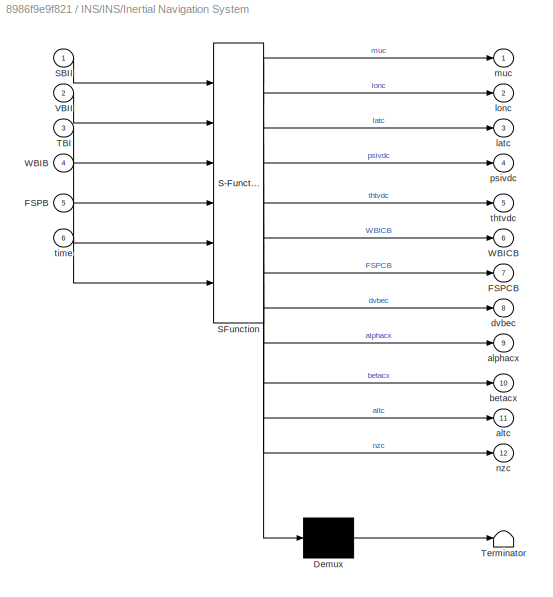
BLOCK [SubSystem] INS/INS/Inertial Navigation System
  ErrorFcn = Stateflow.Translate.translate
  PermitHierarchicalResolution = ExplicitOnly
  Ports = [6, 12]
  SFBlockType = MATLAB Function
  TreatAsAtomicUnit = on
BLOCK [Demux] INS/INS/Inertial Navigation System/ Demux 
  Outputs = 1
  Ports = [1, 1]
BLOCK [S-Function] INS/INS/Inertial Navigation System/ SFunction 
  EnableBusSupport = off
  FunctionName = sf_sfun
  Parameters = IC,Sim
  PortCounts = [6 13]
  Ports = [6, 13]
  SFcnIsStateOwnerBlock = off
  SFunctionDeploymentMode = off
  Tag = Stateflow S-Function GHAME_Model_2018b 20
BLOCK [Terminator] INS/INS/Inertial Navigation System/ Terminator 
BLOCK [Inport] INS/INS/Inertial Navigation System/FSPB
  Port = 5
BLOCK [Outport] INS/INS/Inertial Navigation System/FSPCB
  Port = 7
BLOCK [Inport] INS/INS/Inertial Navigation System/SBII
BLOCK [Inport] INS/INS/Inertial Navigation System/TBI
  Port = 3
BLOCK [Inport] INS/INS/Inertial Navigation System/VBII
  Port = 2
BLOCK [Inport] INS/INS/Inertial Navigation System/WBIB
  Port = 4
BLOCK [Outport] INS/INS/Inertial Navigation System/WBICB
  Port = 6
BLOCK [Outport] INS/INS/Inertial Navigation System/alphacx
  Port = 9
BLOCK [Outport] INS/INS/Inertial Navigation System/altc
  Port = 11
BLOCK [Outport] INS/INS/Inertial Navigation System/betacx
  Port = 10
BLOCK [Outport] INS/INS/Inertial Navigation System/dvbec
  Port = 8
BLOCK [Outport] INS/INS/Inertial Navigation System/latc
  Port = 3
BLOCK [Outport] INS/INS/Inertial Navigation System/lonc
  Port = 2
BLOCK [Outport] INS/INS/Inertial Navigation System/muc
BLOCK [Outport] INS/INS/Inertial Navigation System/nzc
  Port = 12
BLOCK [Outport] INS/INS/Inertial Navigation System/psivdc
  Port = 4
BLOCK [Outport] INS/INS/Inertial Navigation System/thtvdc
  Port = 5
BLOCK [Inport] INS/INS/Inertial Navigation System/time
  Port = 6
BLOCK [Inport] INS/INS/SBII
  Port = 2
BLOCK [Inport] INS/INS/TBI
BLOCK [Inport] INS/INS/VBII
  Port = 4
BLOCK [Inport] INS/INS/WBIB
  Port = 3
BLOCK [Outport] INS/INS/WBICB
BLOCK [Outport] INS/INS/alphacx
  Port = 3
BLOCK [Outport] INS/INS/altc
  Port = 8
BLOCK [Outport] INS/INS/betacx
  Port = 6
BLOCK [Outport] INS/INS/dvbec
  Port = 2
BLOCK [Outport] INS/INS/latc
  Port = 10
BLOCK [Outport] INS/INS/lonc
  Port = 9
BLOCK [Outport] INS/INS/muc
  Port = 11
BLOCK [Outport] INS/INS/nzc
  Port = 12
BLOCK [Outport] INS/INS/psivdc
  Port = 7
BLOCK [Outport] INS/INS/thtvdc
  Port = 5
BLOCK [Inport] INS/Kinematics Bus
  Port = 2
BLOCK [SubSystem] Perturbation
  Ports = [0, 1]
BLOCK [FromWorkspace] Perturbation/From Workspace
  SampleTime = Sim.sample_time
  VariableName = CMD.perturbElevator.time_signal
BLOCK [Outport] Perturbation/Peturbation
BLOCK [Sum] Sum
  Inputs = ++|
  Ports = [2, 1]
LINE Actuators/Bus Creator:1 -> Actuators/Input Bus:1
LINE Actuators/Bus Selector:1 -> Actuators/to Elevon command:1
LINE Actuators/Bus Selector:2 -> Actuators/to Elevon command:2
LINE Actuators/Bus Selector:3 -> Actuators/Subsystem2:1
LINE Actuators/Bus Selector:4 -> Actuators/Bus Creator:2
LINE Actuators/Mux:1 -> Actuators/Bus Creator:1
LINE Actuators/Pilot:1 -> Actuators/Bus Selector:1
LINE Actuators/Subsystem/2*zeta * wn:1 -> Actuators/Subsystem/Sum2:2
LINE Actuators/Subsystem/Demand limits:1 -> Actuators/Subsystem/Sum3:1
NET Actuators/Subsystem/Integrator, Second-Order Limited:1 -> Actuators/Subsystem/Sum3:2, Actuators/Subsystem/elvl:1
LINE Actuators/Subsystem/Integrator, Second-Order Limited:2 -> Actuators/Subsystem/2*zeta * wn:1
LINE Actuators/Subsystem/Sum2:1 -> Actuators/Subsystem/Integrator, Second-Order Limited:1
LINE Actuators/Subsystem/Sum3:1 -> Actuators/Subsystem/rate limit*2*zeta//wn:1
LINE Actuators/Subsystem/elvlc:1 -> Actuators/Subsystem/Demand limits:1
LINE Actuators/Subsystem/rate limit*2*zeta//wn:1 -> Actuators/Subsystem/wn^2:1
LINE Actuators/Subsystem/wn^2:1 -> Actuators/Subsystem/Sum2:1
LINE Actuators/Subsystem1/2*zeta * wn:1 -> Actuators/Subsystem1/Sum2:2
LINE Actuators/Subsystem1/Demand limits:1 -> Actuators/Subsystem1/Sum3:1
NET Actuators/Subsystem1/Integrator, Second-Order Limited:1 -> Actuators/Subsystem1/Sum3:2, Actuators/Subsystem1/elvr:1
LINE Actuators/Subsystem1/Integrator, Second-Order Limited:2 -> Actuators/Subsystem1/2*zeta * wn:1
LINE Actuators/Subsystem1/Sum2:1 -> Actuators/Subsystem1/Integrator, Second-Order Limited:1
LINE Actuators/Subsystem1/Sum3:1 -> Actuators/Subsystem1/rate limit*2*zeta//wn:1
LINE Actuators/Subsystem1/elvrc:1 -> Actuators/Subsystem1/Demand limits:1
LINE Actuators/Subsystem1/rate limit*2*zeta//wn:1 -> Actuators/Subsystem1/wn^2:1
LINE Actuators/Subsystem1/wn^2:1 -> Actuators/Subsystem1/Sum2:1
LINE Actuators/Subsystem1:1 -> Actuators/from Elevon command:2
LINE Actuators/Subsystem2/2*zeta * wn:1 -> Actuators/Subsystem2/Sum2:2
LINE Actuators/Subsystem2/Demand limits:1 -> Actuators/Subsystem2/Sum3:1
NET Actuators/Subsystem2/Integrator, Second-Order Limited:1 -> Actuators/Subsystem2/Sum3:2, Actuators/Subsystem2/delr:1
LINE Actuators/Subsystem2/Integrator, Second-Order Limited:2 -> Actuators/Subsystem2/2*zeta * wn:1
LINE Actuators/Subsystem2/Sum2:1 -> Actuators/Subsystem2/Integrator, Second-Order Limited:1
LINE Actuators/Subsystem2/Sum3:1 -> Actuators/Subsystem2/rate limit*2*zeta//wn:1
LINE Actuators/Subsystem2/delrc:1 -> Actuators/Subsystem2/Demand limits:1
LINE Actuators/Subsystem2/rate limit*2*zeta//wn:1 -> Actuators/Subsystem2/wn^2:1
LINE Actuators/Subsystem2/wn^2:1 -> Actuators/Subsystem2/Sum2:1
LINE Actuators/Subsystem2:1 -> Actuators/Mux:3
LINE Actuators/Subsystem:1 -> Actuators/from Elevon command:1
LINE Actuators/from Elevon command/Add1:1 -> Actuators/from Elevon command/Divide1:2
LINE Actuators/from Elevon command/Add:1 -> Actuators/from Elevon command/Divide:1
NET Actuators/from Elevon command/Constant:1 -> Actuators/from Elevon command/Divide1:1, Actuators/from Elevon command/Divide:2
LINE Actuators/from Elevon command/Divide1:1 -> Actuators/from Elevon command/dele:1
LINE Actuators/from Elevon command/Divide:1 -> Actuators/from Elevon command/dela:1
NET Actuators/from Elevon command/elvl:1 -> Actuators/from Elevon command/Add1:2, Actuators/from Elevon command/Add:1
NET Actuators/from Elevon command/elvr:1 -> Actuators/from Elevon command/Add1:1, Actuators/from Elevon command/Add:2
LINE Actuators/from Elevon command:1 -> Actuators/Mux:1
LINE Actuators/from Elevon command:2 -> Actuators/Mux:2
LINE Actuators/to Elevon command/Add1:1 -> Actuators/to Elevon command/elvrc:1
LINE Actuators/to Elevon command/Add:1 -> Actuators/to Elevon command/elvlc:1
LINE Actuators/to Elevon command/Unary Minus:1 -> Actuators/to Elevon command/Add1:2
NET Actuators/to Elevon command/delac:1 -> Actuators/to Elevon command/Add:1, Actuators/to Elevon command/Unary Minus:1
NET Actuators/to Elevon command/delec:1 -> Actuators/to Elevon command/Add1:1, Actuators/to Elevon command/Add:2
LINE Actuators/to Elevon command:1 -> Actuators/Subsystem:1
LINE Actuators/to Elevon command:2 -> Actuators/Subsystem1:1
NET Actuators:1 -> Data collection:1, GHAME Airframe:1
LINE Bus Creator:1 -> Actuators:1
LINE Constant1:1 -> Sum:2
LINE Constant2:1 -> Bus Creator:3
LINE Constant3:1 -> Bus Creator:4
LINE Constant:1 -> Bus Creator:1
LINE Data collection/Bus Selector1:1 -> Data collection/Radians to Degrees:1
LINE Data collection/Bus Selector1:2 -> Data collection/To Workspace8:1
LINE Data collection/Bus Selector:1 -> Data collection/To Workspace:1
LINE Data collection/Bus Selector:2 -> Data collection/To Workspace3:1
LINE Data collection/Bus Selector:3 -> Data collection/Radians to Degrees1:1
LINE Data collection/Bus Selector:4 -> Data collection/Radians to Degrees2:1
LINE Data collection/Bus Selector:5 -> Data collection/Radians to Degrees3:1
LINE Data collection/Bus Selector:6 -> Data collection/To Workspace9:1
LINE Data collection/Bus Selector:7 -> Data collection/To Workspace1:1
LINE Data collection/Bus Selector:8 -> Data collection/To Workspace2:1
LINE Data collection/Bus Selector:9 -> Data collection/Radians to Degrees4:1
LINE Data collection/Demux:1 -> Data collection/To Workspace11:1
LINE Data collection/Demux:2 -> Data collection/To Workspace10:1
LINE Data collection/Demux:3 -> Data collection/To Workspace12:1
LINE Data collection/INS Bus:1 -> Data collection/Bus Selector:1
LINE Data collection/Input Bus:1 -> Data collection/Bus Selector1:1
LINE Data collection/Radians to Degrees1:1 -> Data collection/To Workspace4:1
LINE Data collection/Radians to Degrees2:1 -> Data collection/To Workspace5:1
LINE Data collection/Radians to Degrees3:1 -> Data collection/To Workspace7:1
LINE Data collection/Radians to Degrees4:1 -> Data collection/To Workspace6:1
LINE Data collection/Radians to Degrees:1 -> Data collection/Demux:1
LINE GHAME Airframe/Dynamics/Bus Creator1:1 -> GHAME Airframe/Dynamics/Bus Creator2:1
LINE GHAME Airframe/Dynamics/Bus Creator2:1 -> GHAME Airframe/Dynamics/Dynamics Bus:1
LINE GHAME Airframe/Dynamics/Bus Creator:1 -> GHAME Airframe/Dynamics/Bus Creator2:2
LINE GHAME Airframe/Dynamics/Bus Selector1:1 -> GHAME Airframe/Dynamics/NEWTON:4
LINE GHAME Airframe/Dynamics/Bus Selector2:1 -> GHAME Airframe/Dynamics/EULER:1
LINE GHAME Airframe/Dynamics/Bus Selector2:2 -> GHAME Airframe/Dynamics/Bus Selector3:1
NET GHAME Airframe/Dynamics/Bus Selector3:1 -> GHAME Airframe/Dynamics/Bus Selector5:1, GHAME Airframe/Dynamics/Bus Selector6:1
LINE GHAME Airframe/Dynamics/Bus Selector4:1 -> GHAME Airframe/Dynamics/NEWTON:2
LINE GHAME Airframe/Dynamics/Bus Selector5:1 -> GHAME Airframe/Dynamics/EULER:2
LINE GHAME Airframe/Dynamics/Bus Selector5:2 -> GHAME Airframe/Dynamics/EULER:3
LINE GHAME Airframe/Dynamics/Bus Selector6:1 -> GHAME Airframe/Dynamics/NEWTON:1
NET GHAME Airframe/Dynamics/Bus Selector:1 -> GHAME Airframe/Dynamics/EULER:4, GHAME Airframe/Dynamics/NEWTON:3
NET GHAME Airframe/Dynamics/EULER/Cross product/A:1 -> GHAME Airframe/Dynamics/EULER/Cross product/Subsystem1:1, GHAME Airframe/Dynamics/EULER/Cross product/Subsystem:1
NET GHAME Airframe/Dynamics/EULER/Cross product/B:1 -> GHAME Airframe/Dynamics/EULER/Cross product/Subsystem1:2, GHAME Airframe/Dynamics/EULER/Cross product/Subsystem:2
LINE GHAME Airframe/Dynamics/EULER/Cross product/Subsystem1:1 -> GHAME Airframe/Dynamics/EULER/Cross product/Sum:2
LINE GHAME Airframe/Dynamics/EULER/Cross product/Subsystem:1 -> GHAME Airframe/Dynamics/EULER/Cross product/Sum:1
LINE GHAME Airframe/Dynamics/EULER/Cross product/Sum:1 -> GHAME Airframe/Dynamics/EULER/Cross product/Out1:1
LINE GHAME Airframe/Dynamics/EULER/Cross product:1 -> GHAME Airframe/Dynamics/EULER/Minus:2
LINE GHAME Airframe/Dynamics/EULER/Earth rotation:1 -> GHAME Airframe/Dynamics/EULER/Matrix Multiply1:2
LINE GHAME Airframe/Dynamics/EULER/FMB:1 -> GHAME Airframe/Dynamics/EULER/Minus:3
NET GHAME Airframe/Dynamics/EULER/IBBB:1 -> GHAME Airframe/Dynamics/EULER/Matrix Multiply:1, GHAME Airframe/Dynamics/EULER/Product:1
LINE GHAME Airframe/Dynamics/EULER/IBBBdot:1 -> GHAME Airframe/Dynamics/EULER/Matrix Multiply3:1
LINE GHAME Airframe/Dynamics/EULER/Initial body rate/Constant:1 -> GHAME Airframe/Dynamics/EULER/Initial body rate/WBIB0:1
LINE GHAME Airframe/Dynamics/EULER/Initial body rate:1 -> GHAME Airframe/Dynamics/EULER/Integrate:2
NET GHAME Airframe/Dynamics/EULER/Integrate:1 -> GHAME Airframe/Dynamics/EULER/Cross product:1, GHAME Airframe/Dynamics/EULER/Matrix Multiply3:2, GHAME Airframe/Dynamics/EULER/Matrix Multiply:2, GHAME Airframe/Dynamics/EULER/Sum:1, GHAME Airframe/Dynamics/EULER/WBIB :1
LINE GHAME Airframe/Dynamics/EULER/Matrix Multiply1:1 -> GHAME Airframe/Dynamics/EULER/Sum:2
LINE GHAME Airframe/Dynamics/EULER/Matrix Multiply2:1 -> GHAME Airframe/Dynamics/EULER/Integrate:1
LINE GHAME Airframe/Dynamics/EULER/Matrix Multiply3:1 -> GHAME Airframe/Dynamics/EULER/Minus:1
LINE GHAME Airframe/Dynamics/EULER/Matrix Multiply:1 -> GHAME Airframe/Dynamics/EULER/Cross product:2
LINE GHAME Airframe/Dynamics/EULER/Minus:1 -> GHAME Airframe/Dynamics/EULER/Matrix Multiply2:2
LINE GHAME Airframe/Dynamics/EULER/Product:1 -> GHAME Airframe/Dynamics/EULER/Matrix Multiply2:1
LINE GHAME Airframe/Dynamics/EULER/Radians to Degrees:1 -> GHAME Airframe/Dynamics/EULER/WBEBx:1
LINE GHAME Airframe/Dynamics/EULER/Sum:1 -> GHAME Airframe/Dynamics/EULER/Radians to Degrees:1
LINE GHAME Airframe/Dynamics/EULER/TBI:1 -> GHAME Airframe/Dynamics/EULER/Matrix Multiply1:1
LINE GHAME Airframe/Dynamics/EULER:1 -> GHAME Airframe/Dynamics/Bus Creator1:1
LINE GHAME Airframe/Dynamics/EULER:2 -> GHAME Airframe/Dynamics/Bus Creator1:2
LINE GHAME Airframe/Dynamics/Environment Bus:1 -> GHAME Airframe/Dynamics/Bus Selector1:1
NET GHAME Airframe/Dynamics/Force Bus:1 -> GHAME Airframe/Dynamics/Bus Selector2:1, GHAME Airframe/Dynamics/Bus Selector4:1
LINE GHAME Airframe/Dynamics/Kinematics Bus:1 -> GHAME Airframe/Dynamics/Bus Selector:1
NET GHAME Airframe/Dynamics/NEWTON/Divide:1 -> GHAME Airframe/Dynamics/NEWTON/FSPB:1, GHAME Airframe/Dynamics/NEWTON/Matrix Multiply4:2
NET GHAME Airframe/Dynamics/NEWTON/Earth rotation:1 -> GHAME Airframe/Dynamics/NEWTON/Matrix Multiply2:1, GHAME Airframe/Dynamics/NEWTON/Matrix Multiply5:1
LINE GHAME Airframe/Dynamics/NEWTON/FAPB:1 -> GHAME Airframe/Dynamics/NEWTON/Divide:1
LINE GHAME Airframe/Dynamics/NEWTON/GRAVG:1 -> GHAME Airframe/Dynamics/NEWTON/Matrix Multiply3:2
LINE GHAME Airframe/Dynamics/NEWTON/Geodetic position update/Clock:1 -> GHAME Airframe/Dynamics/NEWTON/Geodetic position update/Geodetic Position:1
LINE GHAME Airframe/Dynamics/NEWTON/Geodetic position update/Geodetic Position:1 -> GHAME Airframe/Dynamics/NEWTON/Geodetic position update/lon:1
LINE GHAME Airframe/Dynamics/NEWTON/Geodetic position update/Geodetic Position:2 -> GHAME Airframe/Dynamics/NEWTON/Geodetic position update/TM Inertial to Geodetic:1
LINE GHAME Airframe/Dynamics/NEWTON/Geodetic position update/Geodetic Position:3 -> GHAME Airframe/Dynamics/NEWTON/Geodetic position update/TM Inertial to Geodetic:2
LINE GHAME Airframe/Dynamics/NEWTON/Geodetic position update/Geodetic Position:4 -> GHAME Airframe/Dynamics/NEWTON/Geodetic position update/TM Inertial to Geocentric:3
LINE GHAME Airframe/Dynamics/NEWTON/Geodetic position update/SBII:1 -> GHAME Airframe/Dynamics/NEWTON/Geodetic position update/Geodetic Position:2
LINE GHAME Airframe/Dynamics/NEWTON/Geodetic position update/TM Inertial to Geocentric:1 -> GHAME Airframe/Dynamics/NEWTON/Geodetic position update/TGI:1
LINE GHAME Airframe/Dynamics/NEWTON/Geodetic position update/TM Inertial to Geocentric:2 -> GHAME Airframe/Dynamics/NEWTON/Geodetic position update/TDI:1
LINE GHAME Airframe/Dynamics/NEWTON/Geodetic position update/TM Inertial to Geocentric:3 -> GHAME Airframe/Dynamics/NEWTON/Geodetic position update/lat:1
LINE GHAME Airframe/Dynamics/NEWTON/Geodetic position update/TM Inertial to Geocentric:4 -> GHAME Airframe/Dynamics/NEWTON/Geodetic position update/alt:1
LINE GHAME Airframe/Dynamics/NEWTON/Geodetic position update/TM Inertial to Geodetic:1 -> GHAME Airframe/Dynamics/NEWTON/Geodetic position update/TM Inertial to Geocentric:1
LINE GHAME Airframe/Dynamics/NEWTON/Geodetic position update/TM Inertial to Geodetic:2 -> GHAME Airframe/Dynamics/NEWTON/Geodetic position update/TM Inertial to Geocentric:2
LINE GHAME Airframe/Dynamics/NEWTON/Geodetic position update:1 -> GHAME Airframe/Dynamics/NEWTON/Transpose2:1
NET GHAME Airframe/Dynamics/NEWTON/Geodetic position update:2 -> GHAME Airframe/Dynamics/NEWTON/Matrix Multiply1:1, GHAME Airframe/Dynamics/NEWTON/TDI:1
LINE GHAME Airframe/Dynamics/NEWTON/Geodetic position update:3 -> GHAME Airframe/Dynamics/NEWTON/lon:1
LINE GHAME Airframe/Dynamics/NEWTON/Geodetic position update:4 -> GHAME Airframe/Dynamics/NEWTON/lat:1
LINE GHAME Airframe/Dynamics/NEWTON/Geodetic position update:5 -> GHAME Airframe/Dynamics/NEWTON/alt:1
NET GHAME Airframe/Dynamics/NEWTON/Inertial Position:1 -> GHAME Airframe/Dynamics/NEWTON/Geodetic position update:1, GHAME Airframe/Dynamics/NEWTON/Matrix Multiply2:2, GHAME Airframe/Dynamics/NEWTON/SBII :1
NET GHAME Airframe/Dynamics/NEWTON/Inertial Velocity:1 -> GHAME Airframe/Dynamics/NEWTON/Inertial Position:1, GHAME Airframe/Dynamics/NEWTON/Matrix Multiply5:2, GHAME Airframe/Dynamics/NEWTON/Subtract2:2, GHAME Airframe/Dynamics/NEWTON/VBII:1
LINE GHAME Airframe/Dynamics/NEWTON/Initial inertial pos./Constant:1 -> GHAME Airframe/Dynamics/NEWTON/Initial inertial pos./SBII0:1
LINE GHAME Airframe/Dynamics/NEWTON/Initial inertial pos.:1 -> GHAME Airframe/Dynamics/NEWTON/Inertial Position:2
LINE GHAME Airframe/Dynamics/NEWTON/Initial inertial vel./Constant:1 -> GHAME Airframe/Dynamics/NEWTON/Initial inertial vel./VBII0:1
LINE GHAME Airframe/Dynamics/NEWTON/Initial inertial vel.:1 -> GHAME Airframe/Dynamics/NEWTON/Inertial Velocity:2
NET GHAME Airframe/Dynamics/NEWTON/Matrix Multiply1:1 -> GHAME Airframe/Dynamics/NEWTON/Speed:1, GHAME Airframe/Dynamics/NEWTON/VBED:1
LINE GHAME Airframe/Dynamics/NEWTON/Matrix Multiply2:1 -> GHAME Airframe/Dynamics/NEWTON/Subtract2:1
LINE GHAME Airframe/Dynamics/NEWTON/Matrix Multiply3:1 -> GHAME Airframe/Dynamics/NEWTON/Sum1:2
LINE GHAME Airframe/Dynamics/NEWTON/Matrix Multiply4:1 -> GHAME Airframe/Dynamics/NEWTON/Sum1:1
LINE GHAME Airframe/Dynamics/NEWTON/Matrix Multiply5:1 -> GHAME Airframe/Dynamics/NEWTON/Subtract1:1
LINE GHAME Airframe/Dynamics/NEWTON/Matrix Multiply6:1 -> GHAME Airframe/Dynamics/NEWTON/ABEB:1
LINE GHAME Airframe/Dynamics/NEWTON/Speed/Dot Product:1 -> GHAME Airframe/Dynamics/NEWTON/Speed/Square Root:1
LINE GHAME Airframe/Dynamics/NEWTON/Speed/Square Root:1 -> GHAME Airframe/Dynamics/NEWTON/Speed/DVBE:1
NET GHAME Airframe/Dynamics/NEWTON/Speed/VBED [NED]:1 -> GHAME Airframe/Dynamics/NEWTON/Speed/Dot Product:1, GHAME Airframe/Dynamics/NEWTON/Speed/Dot Product:2
LINE GHAME Airframe/Dynamics/NEWTON/Speed:1 -> GHAME Airframe/Dynamics/NEWTON/DVBE:1
LINE GHAME Airframe/Dynamics/NEWTON/Subtract1:1 -> GHAME Airframe/Dynamics/NEWTON/Matrix Multiply6:2
LINE GHAME Airframe/Dynamics/NEWTON/Subtract2:1 -> GHAME Airframe/Dynamics/NEWTON/Matrix Multiply1:2
NET GHAME Airframe/Dynamics/NEWTON/Sum1:1 -> GHAME Airframe/Dynamics/NEWTON/Inertial Velocity:1, GHAME Airframe/Dynamics/NEWTON/Subtract1:2
NET GHAME Airframe/Dynamics/NEWTON/TBI:1 -> GHAME Airframe/Dynamics/NEWTON/Matrix Multiply6:1, GHAME Airframe/Dynamics/NEWTON/Transpose1:1
LINE GHAME Airframe/Dynamics/NEWTON/Transpose1:1 -> GHAME Airframe/Dynamics/NEWTON/Matrix Multiply4:1
LINE GHAME Airframe/Dynamics/NEWTON/Transpose2:1 -> GHAME Airframe/Dynamics/NEWTON/Matrix Multiply3:1
LINE GHAME Airframe/Dynamics/NEWTON/vmass:1 -> GHAME Airframe/Dynamics/NEWTON/Divide:2
LINE GHAME Airframe/Dynamics/NEWTON:1 -> GHAME Airframe/Dynamics/Bus Creator:1
LINE GHAME Airframe/Dynamics/NEWTON:10 -> GHAME Airframe/Dynamics/Bus Creator:10
LINE GHAME Airframe/Dynamics/NEWTON:2 -> GHAME Airframe/Dynamics/Bus Creator:2
LINE GHAME Airframe/Dynamics/NEWTON:3 -> GHAME Airframe/Dynamics/Bus Creator:3
LINE GHAME Airframe/Dynamics/NEWTON:4 -> GHAME Airframe/Dynamics/Bus Creator:4
LINE GHAME Airframe/Dynamics/NEWTON:5 -> GHAME Airframe/Dynamics/Bus Creator:5
LINE GHAME Airframe/Dynamics/NEWTON:6 -> GHAME Airframe/Dynamics/Bus Creator:6
LINE GHAME Airframe/Dynamics/NEWTON:7 -> GHAME Airframe/Dynamics/Bus Creator:7
LINE GHAME Airframe/Dynamics/NEWTON:8 -> GHAME Airframe/Dynamics/Bus Creator:8
LINE GHAME Airframe/Dynamics/NEWTON:9 -> GHAME Airframe/Dynamics/Bus Creator:9
NET GHAME Airframe/Dynamics:1 -> GHAME Airframe/Dynamics Bus:1, GHAME Airframe/Environment:1, GHAME Airframe/Forces and Moments:2, GHAME Airframe/Kinematics:2
LINE GHAME Airframe/Environment/Bus Creator:1 -> GHAME Airframe/Environment/Environment Bus:1
LINE GHAME Airframe/Environment/Bus Selector1:1 -> GHAME Airframe/Environment/ENVIRONMENT:6
LINE GHAME Airframe/Environment/Bus Selector1:2 -> GHAME Airframe/Environment/ENVIRONMENT:7
LINE GHAME Airframe/Environment/Bus Selector1:3 -> GHAME Airframe/Environment/ENVIRONMENT:8
LINE GHAME Airframe/Environment/Bus Selector:1 -> GHAME Airframe/Environment/ENVIRONMENT:1
LINE GHAME Airframe/Environment/Bus Selector:2 -> GHAME Airframe/Environment/ENVIRONMENT:2
LINE GHAME Airframe/Environment/Bus Selector:3 -> GHAME Airframe/Environment/ENVIRONMENT:3
LINE GHAME Airframe/Environment/Bus Selector:4 -> GHAME Airframe/Environment/ENVIRONMENT:4
LINE GHAME Airframe/Environment/Bus Selector:5 -> GHAME Airframe/Environment/ENVIRONMENT:5
LINE GHAME Airframe/Environment/Dynamics Bus:1 -> GHAME Airframe/Environment/Bus Selector:1
NET GHAME Airframe/Environment/ENVIRONMENT/Atmosphere calculation:1 -> GHAME Airframe/Environment/ENVIRONMENT/Product:1, GHAME Airframe/Environment/ENVIRONMENT/rho:1
LINE GHAME Airframe/Environment/ENVIRONMENT/Atmosphere calculation:2 -> GHAME Airframe/Environment/ENVIRONMENT/Terminator:1
LINE GHAME Airframe/Environment/ENVIRONMENT/Atmosphere calculation:3 -> GHAME Airframe/Environment/ENVIRONMENT/Terminator2:1
LINE GHAME Airframe/Environment/ENVIRONMENT/Atmosphere calculation:4 -> GHAME Airframe/Environment/ENVIRONMENT/dvba//a:1
LINE GHAME Airframe/Environment/ENVIRONMENT/Clock:1 -> GHAME Airframe/Environment/ENVIRONMENT/Gravity Calculation:1
LINE GHAME Airframe/Environment/ENVIRONMENT/Constant2:1 -> GHAME Airframe/Environment/ENVIRONMENT/m --> km1:2
LINE GHAME Airframe/Environment/ENVIRONMENT/Gain:1 -> GHAME Airframe/Environment/ENVIRONMENT/pdynmc:1
LINE GHAME Airframe/Environment/ENVIRONMENT/Gravity Calculation:1 -> GHAME Airframe/Environment/ENVIRONMENT/GRAVG:1
LINE GHAME Airframe/Environment/ENVIRONMENT/Product:1 -> GHAME Airframe/Environment/ENVIRONMENT/Gain:1
LINE GHAME Airframe/Environment/ENVIRONMENT/Radians to Degrees1:1 -> GHAME Airframe/Environment/ENVIRONMENT/Wind and Turbulence:2
LINE GHAME Airframe/Environment/ENVIRONMENT/Radians to Degrees:1 -> GHAME Airframe/Environment/ENVIRONMENT/Wind and Turbulence:3
LINE GHAME Airframe/Environment/ENVIRONMENT/SBII:1 -> GHAME Airframe/Environment/ENVIRONMENT/Gravity Calculation:2
LINE GHAME Airframe/Environment/ENVIRONMENT/Square:1 -> GHAME Airframe/Environment/ENVIRONMENT/Product:2
LINE GHAME Airframe/Environment/ENVIRONMENT/Stop Simulation when alt < 0/If:1 -> GHAME Airframe/Environment/ENVIRONMENT/Stop Simulation when alt < 0/Stop Simulationalt<0:ifaction
LINE GHAME Airframe/Environment/ENVIRONMENT/Stop Simulation when alt < 0/Stop Simulationalt<0/Constant2:1 -> GHAME Airframe/Environment/ENVIRONMENT/Stop Simulation when alt < 0/Stop Simulationalt<0/Stop Simulation:1
LINE GHAME Airframe/Environment/ENVIRONMENT/Stop Simulation when alt < 0/alt:1 -> GHAME Airframe/Environment/ENVIRONMENT/Stop Simulation when alt < 0/If:1
LINE GHAME Airframe/Environment/ENVIRONMENT/TBD:1 -> GHAME Airframe/Environment/ENVIRONMENT/Wind and Turbulence:5
LINE GHAME Airframe/Environment/ENVIRONMENT/VBED:1 -> GHAME Airframe/Environment/ENVIRONMENT/Wind and Turbulence:4
LINE GHAME Airframe/Environment/ENVIRONMENT/Wind and Turbulence/Clock:1 -> GHAME Airframe/Environment/ENVIRONMENT/Wind and Turbulence/Horizontal Wind:3
LINE GHAME Airframe/Environment/ENVIRONMENT/Wind and Turbulence/Constant1:1 -> GHAME Airframe/Environment/ENVIRONMENT/Wind and Turbulence/Horizontal Wind:2
LINE GHAME Airframe/Environment/ENVIRONMENT/Wind and Turbulence/Constant:1 -> GHAME Airframe/Environment/ENVIRONMENT/Wind and Turbulence/Sum:1
LINE GHAME Airframe/Environment/ENVIRONMENT/Wind and Turbulence/Horizontal Wind:1 -> GHAME Airframe/Environment/ENVIRONMENT/Wind and Turbulence/Sum:2
LINE GHAME Airframe/Environment/ENVIRONMENT/Wind and Turbulence/Integrator1:1 -> GHAME Airframe/Environment/ENVIRONMENT/Wind and Turbulence/Turbulence Calculation:6
LINE GHAME Airframe/Environment/ENVIRONMENT/Wind and Turbulence/Integrator2:1 -> GHAME Airframe/Environment/ENVIRONMENT/Wind and Turbulence/Wind Computation:3
LINE GHAME Airframe/Environment/ENVIRONMENT/Wind and Turbulence/Integrator:1 -> GHAME Airframe/Environment/ENVIRONMENT/Wind and Turbulence/Turbulence Calculation:5
NET GHAME Airframe/Environment/ENVIRONMENT/Wind and Turbulence/Magnitude:1 -> GHAME Airframe/Environment/ENVIRONMENT/Wind and Turbulence/DVBA:1, GHAME Airframe/Environment/ENVIRONMENT/Wind and Turbulence/Turbulence Calculation:4
LINE GHAME Airframe/Environment/ENVIRONMENT/Wind and Turbulence/Matrix Multiply:1 -> GHAME Airframe/Environment/ENVIRONMENT/Wind and Turbulence/VBAB:1
LINE GHAME Airframe/Environment/ENVIRONMENT/Wind and Turbulence/Memory:1 -> GHAME Airframe/Environment/ENVIRONMENT/Wind and Turbulence/Wind Computation:2
LINE GHAME Airframe/Environment/ENVIRONMENT/Wind and Turbulence/Mux:1 -> GHAME Airframe/Environment/ENVIRONMENT/Wind and Turbulence/Horizontal Wind:1
NET GHAME Airframe/Environment/ENVIRONMENT/Wind and Turbulence/Subtract:1 -> GHAME Airframe/Environment/ENVIRONMENT/Wind and Turbulence/Magnitude:1, GHAME Airframe/Environment/ENVIRONMENT/Wind and Turbulence/Matrix Multiply:2
LINE GHAME Airframe/Environment/ENVIRONMENT/Wind and Turbulence/Sum:1 -> GHAME Airframe/Environment/ENVIRONMENT/Wind and Turbulence/Wind Computation:1
NET GHAME Airframe/Environment/ENVIRONMENT/Wind and Turbulence/TBD:1 -> GHAME Airframe/Environment/ENVIRONMENT/Wind and Turbulence/Matrix Multiply:1, GHAME Airframe/Environment/ENVIRONMENT/Wind and Turbulence/Turbulence Calculation:1
LINE GHAME Airframe/Environment/ENVIRONMENT/Wind and Turbulence/Turbulence Calculation:1 -> GHAME Airframe/Environment/ENVIRONMENT/Wind and Turbulence/Memory:1
LINE GHAME Airframe/Environment/ENVIRONMENT/Wind and Turbulence/Turbulence Calculation:2 -> GHAME Airframe/Environment/ENVIRONMENT/Wind and Turbulence/Integrator:1
LINE GHAME Airframe/Environment/ENVIRONMENT/Wind and Turbulence/Turbulence Calculation:3 -> GHAME Airframe/Environment/ENVIRONMENT/Wind and Turbulence/Integrator1:1
LINE GHAME Airframe/Environment/ENVIRONMENT/Wind and Turbulence/VBED:1 -> GHAME Airframe/Environment/ENVIRONMENT/Wind and Turbulence/Subtract:1
LINE GHAME Airframe/Environment/ENVIRONMENT/Wind and Turbulence/Wind Computation:1 -> GHAME Airframe/Environment/ENVIRONMENT/Wind and Turbulence/Subtract:2
LINE GHAME Airframe/Environment/ENVIRONMENT/Wind and Turbulence/Wind Computation:2 -> GHAME Airframe/Environment/ENVIRONMENT/Wind and Turbulence/Integrator2:1
LINE GHAME Airframe/Environment/ENVIRONMENT/Wind and Turbulence/alppx:1 -> GHAME Airframe/Environment/ENVIRONMENT/Wind and Turbulence/Turbulence Calculation:2
LINE GHAME Airframe/Environment/ENVIRONMENT/Wind and Turbulence/alt:1 -> GHAME Airframe/Environment/ENVIRONMENT/Wind and Turbulence/Mux:1
LINE GHAME Airframe/Environment/ENVIRONMENT/Wind and Turbulence/latx:1 -> GHAME Airframe/Environment/ENVIRONMENT/Wind and Turbulence/Mux:3
LINE GHAME Airframe/Environment/ENVIRONMENT/Wind and Turbulence/lonx:1 -> GHAME Airframe/Environment/ENVIRONMENT/Wind and Turbulence/Mux:2
LINE GHAME Airframe/Environment/ENVIRONMENT/Wind and Turbulence/phipx:1 -> GHAME Airframe/Environment/ENVIRONMENT/Wind and Turbulence/Turbulence Calculation:3
NET GHAME Airframe/Environment/ENVIRONMENT/Wind and Turbulence:1 -> GHAME Airframe/Environment/ENVIRONMENT/DVBA:1, GHAME Airframe/Environment/ENVIRONMENT/Square:1, GHAME Airframe/Environment/ENVIRONMENT/dvba//a:2
LINE GHAME Airframe/Environment/ENVIRONMENT/Wind and Turbulence:2 -> GHAME Airframe/Environment/ENVIRONMENT/VBAB:1
LINE GHAME Airframe/Environment/ENVIRONMENT/alppx:1 -> GHAME Airframe/Environment/ENVIRONMENT/Wind and Turbulence:6
NET GHAME Airframe/Environment/ENVIRONMENT/alt:1 -> GHAME Airframe/Environment/ENVIRONMENT/Stop Simulation when alt < 0:1, GHAME Airframe/Environment/ENVIRONMENT/Wind and Turbulence:1, GHAME Airframe/Environment/ENVIRONMENT/m --> km1:1
LINE GHAME Airframe/Environment/ENVIRONMENT/dvba//a:1 -> GHAME Airframe/Environment/ENVIRONMENT/vmach:1
LINE GHAME Airframe/Environment/ENVIRONMENT/lat:1 -> GHAME Airframe/Environment/ENVIRONMENT/Radians to Degrees1:1
LINE GHAME Airframe/Environment/ENVIRONMENT/lon:1 -> GHAME Airframe/Environment/ENVIRONMENT/Radians to Degrees:1
LINE GHAME Airframe/Environment/ENVIRONMENT/m --> km1:1 -> GHAME Airframe/Environment/ENVIRONMENT/Atmosphere calculation:1
LINE GHAME Airframe/Environment/ENVIRONMENT/phipx:1 -> GHAME Airframe/Environment/ENVIRONMENT/Wind and Turbulence:7
LINE GHAME Airframe/Environment/ENVIRONMENT:1 -> GHAME Airframe/Environment/Bus Creator:1
LINE GHAME Airframe/Environment/ENVIRONMENT:2 -> GHAME Airframe/Environment/Bus Creator:2
LINE GHAME Airframe/Environment/ENVIRONMENT:3 -> GHAME Airframe/Environment/Bus Creator:3
LINE GHAME Airframe/Environment/ENVIRONMENT:4 -> GHAME Airframe/Environment/Bus Creator:4
LINE GHAME Airframe/Environment/ENVIRONMENT:5 -> GHAME Airframe/Environment/Bus Creator:5
LINE GHAME Airframe/Environment/ENVIRONMENT:6 -> GHAME Airframe/Environment/Bus Creator:6
LINE GHAME Airframe/Environment/Kinematics Bus:1 -> GHAME Airframe/Environment/Bus Selector1:1
NET GHAME Airframe/Environment:1 -> GHAME Airframe/Dynamics:2, GHAME Airframe/Forces and Moments:3, GHAME Airframe/Kinematics:1
LINE GHAME Airframe/Forces and Moments/AERODYNAMICS/Aerodynamic Coefficients:1 -> GHAME Airframe/Forces and Moments/AERODYNAMICS/Bus Creator2:1
LINE GHAME Airframe/Forces and Moments/AERODYNAMICS/Aerodynamic Coefficients:2 -> GHAME Airframe/Forces and Moments/AERODYNAMICS/Bus Creator2:2
LINE GHAME Airframe/Forces and Moments/AERODYNAMICS/Aerodynamic Coefficients:3 -> GHAME Airframe/Forces and Moments/AERODYNAMICS/Bus Creator2:3
LINE GHAME Airframe/Forces and Moments/AERODYNAMICS/Aerodynamic Coefficients:4 -> GHAME Airframe/Forces and Moments/AERODYNAMICS/Bus Creator2:4
LINE GHAME Airframe/Forces and Moments/AERODYNAMICS/Airspeed:1 -> GHAME Airframe/Forces and Moments/AERODYNAMICS/Aerodynamic Coefficients:3
LINE GHAME Airframe/Forces and Moments/AERODYNAMICS/Angle of attack:1 -> GHAME Airframe/Forces and Moments/AERODYNAMICS/Aerodynamic Coefficients:4
LINE GHAME Airframe/Forces and Moments/AERODYNAMICS/Angular velocity:1 -> GHAME Airframe/Forces and Moments/AERODYNAMICS/Aerodynamic Coefficients:6
LINE GHAME Airframe/Forces and Moments/AERODYNAMICS/Bus Creator2:1 -> GHAME Airframe/Forces and Moments/AERODYNAMICS/Aero: Data:1
LINE GHAME Airframe/Forces and Moments/AERODYNAMICS/Deflections:1 -> GHAME Airframe/Forces and Moments/AERODYNAMICS/Aerodynamic Coefficients:1
LINE GHAME Airframe/Forces and Moments/AERODYNAMICS/Mach number:1 -> GHAME Airframe/Forces and Moments/AERODYNAMICS/Aerodynamic Coefficients:2
LINE GHAME Airframe/Forces and Moments/AERODYNAMICS/Sideslip angle:1 -> GHAME Airframe/Forces and Moments/AERODYNAMICS/Aerodynamic Coefficients:5
NET GHAME Airframe/Forces and Moments/AERODYNAMICS:1 -> GHAME Airframe/Forces and Moments/Bus Creator:4, GHAME Airframe/Forces and Moments/FORCE:2
LINE GHAME Airframe/Forces and Moments/Bus Creator:1 -> GHAME Airframe/Forces and Moments/Force Bus:1
LINE GHAME Airframe/Forces and Moments/Bus Selector1:1 -> GHAME Airframe/Forces and Moments/PROPULSION:1
LINE GHAME Airframe/Forces and Moments/Bus Selector2:1 -> GHAME Airframe/Forces and Moments/AERODYNAMICS:6
NET GHAME Airframe/Forces and Moments/Bus Selector3:1 -> GHAME Airframe/Forces and Moments/AERODYNAMICS:4, GHAME Airframe/Forces and Moments/PROPULSION:7
LINE GHAME Airframe/Forces and Moments/Bus Selector3:2 -> GHAME Airframe/Forces and Moments/AERODYNAMICS:5
LINE GHAME Airframe/Forces and Moments/Bus Selector4:1 -> GHAME Airframe/Forces and Moments/PROPULSION:2
LINE GHAME Airframe/Forces and Moments/Bus Selector4:2 -> GHAME Airframe/Forces and Moments/PROPULSION:3
LINE GHAME Airframe/Forces and Moments/Bus Selector4:3 -> GHAME Airframe/Forces and Moments/PROPULSION:4
LINE GHAME Airframe/Forces and Moments/Bus Selector4:4 -> GHAME Airframe/Forces and Moments/PROPULSION:5
LINE GHAME Airframe/Forces and Moments/Bus Selector4:5 -> GHAME Airframe/Forces and Moments/PROPULSION:6
LINE GHAME Airframe/Forces and Moments/Bus Selector5:1 -> GHAME Airframe/Forces and Moments/AERODYNAMICS:1
LINE GHAME Airframe/Forces and Moments/Bus Selector:1 -> GHAME Airframe/Forces and Moments/AERODYNAMICS:2
LINE GHAME Airframe/Forces and Moments/Bus Selector:2 -> GHAME Airframe/Forces and Moments/AERODYNAMICS:3
LINE GHAME Airframe/Forces and Moments/Dynamics Bus:1 -> GHAME Airframe/Forces and Moments/Bus Selector2:1
NET GHAME Airframe/Forces and Moments/Environment Bus:1 -> GHAME Airframe/Forces and Moments/Bus Selector4:1, GHAME Airframe/Forces and Moments/Bus Selector:1
LINE GHAME Airframe/Forces and Moments/FORCE/Aero: Data:1 -> GHAME Airframe/Forces and Moments/FORCE/Bus Selector1:1
LINE GHAME Airframe/Forces and Moments/FORCE/Aerodynamic moments:1 -> GHAME Airframe/Forces and Moments/FORCE/FMB:1
LINE GHAME Airframe/Forces and Moments/FORCE/Bus Selector1:1 -> GHAME Airframe/Forces and Moments/FORCE/Non-gravitational forces:3
LINE GHAME Airframe/Forces and Moments/FORCE/Bus Selector1:2 -> GHAME Airframe/Forces and Moments/FORCE/Aerodynamic moments:1
LINE GHAME Airframe/Forces and Moments/FORCE/Bus Selector:1 -> GHAME Airframe/Forces and Moments/FORCE/Non-gravitational forces:1
NET GHAME Airframe/Forces and Moments/FORCE/Bus Selector:2 -> GHAME Airframe/Forces and Moments/FORCE/Aerodynamic moments:2, GHAME Airframe/Forces and Moments/FORCE/Non-gravitational forces:2
LINE GHAME Airframe/Forces and Moments/FORCE/Non-gravitational forces:1 -> GHAME Airframe/Forces and Moments/FORCE/FAPB:1
LINE GHAME Airframe/Forces and Moments/FORCE/Prop: data:1 -> GHAME Airframe/Forces and Moments/FORCE/Bus Selector:1
LINE GHAME Airframe/Forces and Moments/FORCE:1 -> GHAME Airframe/Forces and Moments/Bus Creator:2
LINE GHAME Airframe/Forces and Moments/FORCE:2 -> GHAME Airframe/Forces and Moments/Bus Creator:3
NET GHAME Airframe/Forces and Moments/Input Bus:1 -> GHAME Airframe/Forces and Moments/Bus Selector1:1, GHAME Airframe/Forces and Moments/Bus Selector5:1
LINE GHAME Airframe/Forces and Moments/Kinematics Bus:1 -> GHAME Airframe/Forces and Moments/Bus Selector3:1
LINE GHAME Airframe/Forces and Moments/PROPULSION/Bus Creator1:1 -> GHAME Airframe/Forces and Moments/PROPULSION/Prop: data:1
LINE GHAME Airframe/Forces and Moments/PROPULSION/DVBA:1 -> GHAME Airframe/Forces and Moments/PROPULSION/Thrust and fuel use:4
LINE GHAME Airframe/Forces and Moments/PROPULSION/GRAVG:1 -> GHAME Airframe/Forces and Moments/PROPULSION/Bus Creator1:6
LINE GHAME Airframe/Forces and Moments/PROPULSION/Integrator:1 -> GHAME Airframe/Forces and Moments/PROPULSION/Subsystem:2
LINE GHAME Airframe/Forces and Moments/PROPULSION/Subsystem/Bus Creator:1 -> GHAME Airframe/Forces and Moments/PROPULSION/Subsystem/Mass and MOI:1
LINE GHAME Airframe/Forces and Moments/PROPULSION/Subsystem/Updating mass and inertia:1 -> GHAME Airframe/Forces and Moments/PROPULSION/Subsystem/Bus Creator:1
LINE GHAME Airframe/Forces and Moments/PROPULSION/Subsystem/Updating mass and inertia:2 -> GHAME Airframe/Forces and Moments/PROPULSION/Subsystem/Bus Creator:2
LINE GHAME Airframe/Forces and Moments/PROPULSION/Subsystem/Updating mass and inertia:3 -> GHAME Airframe/Forces and Moments/PROPULSION/Subsystem/Bus Creator:3
LINE GHAME Airframe/Forces and Moments/PROPULSION/Subsystem/Updating mass and inertia:4 -> GHAME Airframe/Forces and Moments/PROPULSION/Subsystem/Stop Simulation:1
LINE GHAME Airframe/Forces and Moments/PROPULSION/Subsystem/fmasse:1 -> GHAME Airframe/Forces and Moments/PROPULSION/Subsystem/Updating mass and inertia:2
LINE GHAME Airframe/Forces and Moments/PROPULSION/Subsystem/fmdot:1 -> GHAME Airframe/Forces and Moments/PROPULSION/Subsystem/Updating mass and inertia:1
LINE GHAME Airframe/Forces and Moments/PROPULSION/Subsystem:1 -> GHAME Airframe/Forces and Moments/PROPULSION/Bus Creator1:2
LINE GHAME Airframe/Forces and Moments/PROPULSION/Throttle:1 -> GHAME Airframe/Forces and Moments/PROPULSION/Thrust and fuel use:5
LINE GHAME Airframe/Forces and Moments/PROPULSION/Thrust and fuel use:1 -> GHAME Airframe/Forces and Moments/PROPULSION/Bus Creator1:1
NET GHAME Airframe/Forces and Moments/PROPULSION/Thrust and fuel use:2 -> GHAME Airframe/Forces and Moments/PROPULSION/Integrator:1, GHAME Airframe/Forces and Moments/PROPULSION/Subsystem:1
LINE GHAME Airframe/Forces and Moments/PROPULSION/Thrust and fuel use:3 -> GHAME Airframe/Forces and Moments/PROPULSION/Bus Creator1:3
LINE GHAME Airframe/Forces and Moments/PROPULSION/Thrust and fuel use:4 -> GHAME Airframe/Forces and Moments/PROPULSION/Bus Creator1:4
LINE GHAME Airframe/Forces and Moments/PROPULSION/Thrust and fuel use:5 -> GHAME Airframe/Forces and Moments/PROPULSION/Bus Creator1:5
LINE GHAME Airframe/Forces and Moments/PROPULSION/alphax:1 -> GHAME Airframe/Forces and Moments/PROPULSION/Thrust and fuel use:3
LINE GHAME Airframe/Forces and Moments/PROPULSION/pdynmc:1 -> GHAME Airframe/Forces and Moments/PROPULSION/Thrust and fuel use:6
LINE GHAME Airframe/Forces and Moments/PROPULSION/rho:1 -> GHAME Airframe/Forces and Moments/PROPULSION/Thrust and fuel use:1
LINE GHAME Airframe/Forces and Moments/PROPULSION/vmach:1 -> GHAME Airframe/Forces and Moments/PROPULSION/Thrust and fuel use:2
NET GHAME Airframe/Forces and Moments/PROPULSION:1 -> GHAME Airframe/Forces and Moments/Bus Creator:1, GHAME Airframe/Forces and Moments/FORCE:1
LINE GHAME Airframe/Forces and Moments:1 -> GHAME Airframe/Dynamics:1
LINE GHAME Airframe/Input Bus:1 -> GHAME Airframe/Forces and Moments:1
LINE GHAME Airframe/Kinematics/Bus Creator:1 -> GHAME Airframe/Kinematics/Kinematics Bus:1
LINE GHAME Airframe/Kinematics/Bus Selector1:1 -> GHAME Airframe/Kinematics/KINEMATICS:2
LINE GHAME Airframe/Kinematics/Bus Selector1:2 -> GHAME Airframe/Kinematics/KINEMATICS:3
LINE GHAME Airframe/Kinematics/Bus Selector1:3 -> GHAME Airframe/Kinematics/KINEMATICS:4
LINE GHAME Airframe/Kinematics/Bus Selector:1 -> GHAME Airframe/Kinematics/KINEMATICS:1
LINE GHAME Airframe/Kinematics/Dynamics Bus:1 -> GHAME Airframe/Kinematics/Bus Selector1:1
LINE GHAME Airframe/Kinematics/Environment Bus:1 -> GHAME Airframe/Kinematics/Bus Selector:1
NET GHAME Airframe/Kinematics/KINEMATICS/	Orthonormalizing TBI :1 -> GHAME Airframe/Kinematics/KINEMATICS/Matrix Multiply1:1, GHAME Airframe/Kinematics/KINEMATICS/Matrix Multiply2:2, GHAME Airframe/Kinematics/KINEMATICS/TBI :1
LINE GHAME Airframe/Kinematics/KINEMATICS/	Orthonormalizing TBI :2 -> GHAME Airframe/Kinematics/KINEMATICS/Terminator:1
LINE GHAME Airframe/Kinematics/KINEMATICS/Aero angles:1 -> GHAME Airframe/Kinematics/KINEMATICS/alphax:1
LINE GHAME Airframe/Kinematics/KINEMATICS/Aero angles:2 -> GHAME Airframe/Kinematics/KINEMATICS/betax:1
LINE GHAME Airframe/Kinematics/KINEMATICS/Aero angles:3 -> GHAME Airframe/Kinematics/KINEMATICS/alppx:1
LINE GHAME Airframe/Kinematics/KINEMATICS/Aero angles:4 -> GHAME Airframe/Kinematics/KINEMATICS/phipx:1
LINE GHAME Airframe/Kinematics/KINEMATICS/Building TDI:1 -> GHAME Airframe/Kinematics/KINEMATICS/Transpose1:1
LINE GHAME Airframe/Kinematics/KINEMATICS/Clock:1 -> GHAME Airframe/Kinematics/KINEMATICS/Building TDI:3
LINE GHAME Airframe/Kinematics/KINEMATICS/Euler angles:1 -> GHAME Airframe/Kinematics/KINEMATICS/Terminator1:1
LINE GHAME Airframe/Kinematics/KINEMATICS/Euler angles:2 -> GHAME Airframe/Kinematics/KINEMATICS/Terminator2:1
LINE GHAME Airframe/Kinematics/KINEMATICS/Euler angles:3 -> GHAME Airframe/Kinematics/KINEMATICS/phibdx:1
LINE GHAME Airframe/Kinematics/KINEMATICS/IC_Kinematics/Constant:1 -> GHAME Airframe/Kinematics/KINEMATICS/IC_Kinematics/TBI0:1
LINE GHAME Airframe/Kinematics/KINEMATICS/IC_Kinematics:1 -> GHAME Airframe/Kinematics/KINEMATICS/TBI  :2
NET GHAME Airframe/Kinematics/KINEMATICS/Matrix Multiply1:1 -> GHAME Airframe/Kinematics/KINEMATICS/Euler angles:1, GHAME Airframe/Kinematics/KINEMATICS/TBD:1
LINE GHAME Airframe/Kinematics/KINEMATICS/Matrix Multiply2:1 -> GHAME Airframe/Kinematics/KINEMATICS/TBI  :1
LINE GHAME Airframe/Kinematics/KINEMATICS/TBI  :1 -> GHAME Airframe/Kinematics/KINEMATICS/	Orthonormalizing TBI :1
LINE GHAME Airframe/Kinematics/KINEMATICS/Transpose1:1 -> GHAME Airframe/Kinematics/KINEMATICS/Matrix Multiply1:2
LINE GHAME Airframe/Kinematics/KINEMATICS/Transpose:1 -> GHAME Airframe/Kinematics/KINEMATICS/Matrix Multiply2:1
LINE GHAME Airframe/Kinematics/KINEMATICS/VBAB:1 -> GHAME Airframe/Kinematics/KINEMATICS/Aero angles:1
LINE GHAME Airframe/Kinematics/KINEMATICS/WBIB:1 -> GHAME Airframe/Kinematics/KINEMATICS/skew_sym:1
LINE GHAME Airframe/Kinematics/KINEMATICS/lat:1 -> GHAME Airframe/Kinematics/KINEMATICS/Building TDI:2
LINE GHAME Airframe/Kinematics/KINEMATICS/lon:1 -> GHAME Airframe/Kinematics/KINEMATICS/Building TDI:1
LINE GHAME Airframe/Kinematics/KINEMATICS/skew_sym:1 -> GHAME Airframe/Kinematics/KINEMATICS/Transpose:1
LINE GHAME Airframe/Kinematics/KINEMATICS:1 -> GHAME Airframe/Kinematics/Bus Creator:1
LINE GHAME Airframe/Kinematics/KINEMATICS:2 -> GHAME Airframe/Kinematics/Bus Creator:2
LINE GHAME Airframe/Kinematics/KINEMATICS:3 -> GHAME Airframe/Kinematics/Bus Creator:3
LINE GHAME Airframe/Kinematics/KINEMATICS:4 -> GHAME Airframe/Kinematics/Bus Creator:4
LINE GHAME Airframe/Kinematics/KINEMATICS:5 -> GHAME Airframe/Kinematics/Bus Creator:5
LINE GHAME Airframe/Kinematics/KINEMATICS:6 -> GHAME Airframe/Kinematics/Bus Creator:6
LINE GHAME Airframe/Kinematics/KINEMATICS:7 -> GHAME Airframe/Kinematics/Bus Creator:7
NET GHAME Airframe/Kinematics:1 -> GHAME Airframe/Dynamics:3, GHAME Airframe/Environment:2, GHAME Airframe/Forces and Moments:4, GHAME Airframe/Kinematics Bus:1
LINE GHAME Airframe:1 -> INS:1
LINE GHAME Airframe:2 -> INS:2
LINE INS/Bus Creator:1 -> INS/INS Bus:1
LINE INS/Bus Selector1:1 -> INS/INS:1
LINE INS/Bus Selector:1 -> INS/INS:2
LINE INS/Bus Selector:2 -> INS/INS:3
LINE INS/Bus Selector:3 -> INS/INS:4
LINE INS/Bus Selector:4 -> INS/INS:5
LINE INS/Dynamics Bus:1 -> INS/Bus Selector:1
LINE INS/INS/Clock:1 -> INS/INS/Inertial Navigation System:6
LINE INS/INS/FSPB:1 -> INS/INS/Inertial Navigation System:5
LINE INS/INS/Inertial Navigation System:1 -> INS/INS/muc:1
LINE INS/INS/Inertial Navigation System:10 -> INS/INS/betacx:1
LINE INS/INS/Inertial Navigation System:11 -> INS/INS/altc:1
LINE INS/INS/Inertial Navigation System:12 -> INS/INS/nzc:1
LINE INS/INS/Inertial Navigation System:2 -> INS/INS/lonc:1
LINE INS/INS/Inertial Navigation System:3 -> INS/INS/latc:1
LINE INS/INS/Inertial Navigation System:4 -> INS/INS/psivdc:1
LINE INS/INS/Inertial Navigation System:5 -> INS/INS/thtvdc:1
LINE INS/INS/Inertial Navigation System:6 -> INS/INS/WBICB:1
LINE INS/INS/Inertial Navigation System:7 -> INS/INS/FSPCB:1
LINE INS/INS/Inertial Navigation System:8 -> INS/INS/dvbec:1
LINE INS/INS/Inertial Navigation System:9 -> INS/INS/alphacx:1
LINE INS/INS/SBII:1 -> INS/INS/Inertial Navigation System:1
LINE INS/INS/TBI:1 -> INS/INS/Inertial Navigation System:3
LINE INS/INS/VBII:1 -> INS/INS/Inertial Navigation System:2
LINE INS/INS/WBIB:1 -> INS/INS/Inertial Navigation System:4
LINE INS/INS:1 -> INS/Bus Creator:1
LINE INS/INS:10 -> INS/Bus Creator:10
LINE INS/INS:11 -> INS/Bus Creator:11
LINE INS/INS:12 -> INS/Bus Creator:12
LINE INS/INS:2 -> INS/Bus Creator:2
LINE INS/INS:3 -> INS/Bus Creator:3
LINE INS/INS:4 -> INS/Bus Creator:4
LINE INS/INS:5 -> INS/Bus Creator:5
LINE INS/INS:6 -> INS/Bus Creator:6
LINE INS/INS:7 -> INS/Bus Creator:7
LINE INS/INS:8 -> INS/Bus Creator:8
LINE INS/INS:9 -> INS/Bus Creator:9
LINE INS/Kinematics Bus:1 -> INS/Bus Selector1:1
LINE INS:1 -> Data collection:2
LINE Perturbation/From Workspace:1 -> Perturbation/Peturbation:1
LINE Perturbation:1 -> Sum:1
LINE Sum:1 -> Bus Creator:2
note: NET lines group one-source signal fan-out (src -> all destinations, sorted); 1:1 wires keep LINE
CHART GHAME Airframe/Forces and Moments/AERODYNAMICS/Aerodynamic Coefficients states=1 transitions=1
  STATE_LABEL 'eML_blk_kernel()'
  STATE_LABEL 'SCRIPT:\nfunction [c_force, c_moment, cmu, cxz] = aerodynamics(delta, vmach, DVBA, alphax, betax, WBEBx, Data, Sim, UNC)\n                                                       \n% Conversions\nRAD = Sim.constants.RAD;\nDEG = Sim.constants.DEG;\n\nrefb = Sim.vehicle.geometry.refb;\nrefc = Sim.vehicle.geometry.refc;\n\ndelax = delta(1)*DEG;\ndelex = delta(2)*DEG;\ndelrx = delta(3)*DEG;\n\nppx = WBEBx(1);\nqqx = W...<+3511ch>'
CHART GHAME Airframe/Environment/ENVIRONMENT/Wind and Turbulence/Magnitude states=1 transitions=1
  STATE_LABEL 'eML_blk_kernel()'
  STATE_LABEL 'SCRIPT:\nfunction DVBA = fcn(VBAD)\n% Calculates magnitude of vector\n\nDVBA = sqrt(VBAD(1)^2+VBAD(2)^2+VBAD(3)^2);\n'
CHART GHAME Airframe/Forces and Moments/FORCE/Non-gravitational forces states=1 transitions=1
  STATE_LABEL 'eML_blk_kernel()'
  STATE_LABEL 'SCRIPT:\nfunction FAPB = computeForces(Thrust, pdynmc, c_force, Sim)\n% computeForces\n% -------------------------------------------------------------------------\n% Computes the total non-gravitational forces acting on the vehicle in the\n% body coordinate system. These include the aerodynamic force components\n% and the propulsive contribution along the body x-axis.\n%\n% INPUTS:\n%   thrust  - Propulsiv...<+553ch>'
CHART GHAME Airframe/Environment/ENVIRONMENT/Wind and Turbulence/Turbulence Calculation states=1 transitions=1
  STATE_LABEL 'eML_blk_kernel()'
  STATE_LABEL 'SCRIPT:\nfunction [VTAD, taux1d, taux2d] = environment_dryden(TBD, alppx, phipx, dvba, taux1, taux2, Sim)\n    % ENVIRONMENT_DRYDEN Simulates Dryden turbulence in geodetic coordinates.\n    %\n    % Inputs:\n    %   dvba      - Airspeed magnitude [scalar]\n    %   Ts  - Integration step size [scalar]\n    %   round6    - Data storage (provides turbulence parameters)\n    %   taux1, taux1d, taux2, taux2d -...<+1218ch>'
CHART GHAME Airframe/Forces and Moments/PROPULSION/Subsystem/Updating mass and inertia states=1 transitions=1
  STATE_LABEL 'eML_blk_kernel()'
  STATE_LABEL 'SCRIPT:\nfunction [IBBB, IBBBdot, vmass, stop_flag] = mass(fmdot, fmasse, Sim)\n% mass\n% -------------------------------------------------------------------------\n% Updates the vehicle total mass, mass derivative, inertia tensor, and \n% inertia time derivative as a function of expended fuel. The mass \n% properties are interpolated between the full and empty tank conditions. \n% A stop flag is generat...<+1339ch>'
CHART GHAME Airframe/Environment/ENVIRONMENT/Wind and Turbulence/Wind Computation states=1 transitions=1
  STATE_LABEL 'eML_blk_kernel()'
  STATE_LABEL 'SCRIPT:\nfunction [VAED, VAEDSD]  = wind(Vwind, VTAD, VAEDS, Sim)\n    % Wind Computes atmospheric properties, wind, and turbulence.\n    %\n    % States:\n    % VAED   - Wind velocity in geodetic coordinates - m/s\n    % VAEDS  - Smoothed wind velocity in geodetic coord - m/s\n    % VAEDSD - Smoothed wind velocity derivative - m/s\n\n    mturb = Sim.mode.mturb;\n    mwind = Sim.mode.mwind;\n    \n    % Const...<+615ch>'
CHART GHAME Airframe/Environment/ENVIRONMENT/Gravity Calculation states=1 transitions=1
  STATE_LABEL 'eML_blk_kernel()'
  STATE_LABEL 'SCRIPT:\nfunction GRAVG  = cad_grav84(time, SBII, IC, Sim)\n  \n    % Extract Constants\n    SMAJOR_AXIS = Sim.earth.SMAJOR_AXIS;\n    C20         = Sim.earth.C20;\n    REARTH      = Sim.earth.REARTH;\n    GW_CLONG    = Sim.earth.GW_CLONG;\n    GM          = Sim.earth.GM;\n\n    WEII3 = IC.WEII3;\n\n    % Initialize output\n    GRAVG = zeros(3,1);\n\n    % Compute geocentric coordinates\n    [lonc, latc, altc] = ...<+1364ch>'
CHART GHAME Airframe/Forces and Moments/PROPULSION/Thrust and fuel use states=1 transitions=1
  STATE_LABEL 'eML_blk_kernel()'
  STATE_LABEL 'SCRIPT:\nfunction [ Thrust, fmdot, cx_prop, Throttle, pdynmc] = thrust(rho, Mach, alphax, DVBA, Throttle, pdynmc, Data, Sim)\n% thrust\n% -------------------------------------------------------------------------\n% Computes the engine thrust, fuel mass depletion rate, and propulsive\n% force coefficient for the vehicle. Thrust is modeled as a function of\n% Mach number, throttle setting, angle of attack...<+2214ch>'
CHART GHAME Airframe/Environment/ENVIRONMENT/Atmosphere calculation states=1 transitions=1
  STATE_LABEL 'eML_blk_kernel()'
  STATE_LABEL 'SCRIPT:\nfunction [rho, press, tempk,vsound] = us76_nasa2002(alt_km)\n    % 1976 US Standard Atmosphere Model\n    % Inputs:\n    %   z  - Altitude (km)\n    % Outputs:\n    %   d  - Density (kg/m^3)\n    %   p  - Pressure (Pa)\n    %   t  - Temperature (K)\n    %   s  - Speed of sound (m/s)\n    %   status - Returns 0 if altitude is in range, 1 if out of range\n\n    % Initialize all outputs to avoid "not fu...<+3608ch>'
CHART INS/INS/Inertial Navigation System states=1 transitions=1
  STATE_LABEL 'eML_blk_kernel()'
  STATE_LABEL 'SCRIPT:\nfunction [muc, lonc, latc, psivdc, thtvdc, WBICB, FSPCB, dvbec, ...\n    alphacx, betacx, altc, nzc] = ins(SBII, VBII, TBI, WBIB, FSPB, ...\n    time, Sim, IC)\n%\n% INS  Inertial Navigation System model.\n%\n% This function computes navigation states and derived flight quantities\n% from inertial position, velocity, attitude, angular rates, and specific\n% force inputs.\n%\n% In the current impleme...<+3608ch>'
CHART GHAME Airframe/Dynamics/NEWTON/Geodetic position update/Geodetic Position states=1 transitions=1
  STATE_LABEL 'eML_blk_kernel()'
  STATE_LABEL 'SCRIPT:\nfunction [lon, lon_cel, lat, alt] = cad_geo84_in_cont(time, SBII, IC, Sim)\n% cad_geo84_in_cont\n% -------------------------------------------------------------------------\n% Converts the inertial position vector [s_BI]^I into geodetic coordinates:\n% geodetic longitude, latitude, and altitude above the reference ellipsoid.\n%\n% INPUTS:\n%   time   - Current simulation time [s]\n%   SBII   - 3x1...<+2294ch>'
CHART GHAME Airframe/Dynamics/NEWTON/Geodetic position update/TM Inertial to Geocentric states=1 transitions=1
  STATE_LABEL 'eML_blk_kernel()'
  STATE_LABEL 'SCRIPT:\nfunction [TGI, TDI, lat, alt] = cad_tgi84(TDI, lat, alt, Sim)\n% cad_tgi84\n% -------------------------------------------------------------------------\n% Computes the transformation matrix [T]^{GI}, which transforms vectors\n% from the inertial coordinate system (I) to the geocentric coordinate\n% system (G). The computation is based on an ellipsoidal Earth model using\n% the first and second f...<+1197ch>'
CHART GHAME Airframe/Dynamics/NEWTON/Geodetic position update/TM Inertial to Geodetic states=1 transitions=1
  STATE_LABEL 'eML_blk_kernel()'
  STATE_LABEL 'SCRIPT:\nfunction [TDI, lat] = cad_tdi84(lon_cel, lat)\n% cad_tdi84\n% -------------------------------------------------------------------------\n% Computes the transformation matrix [T]^{DI}, which transforms vectors\n% from the inertial coordinate system (I) to the geodetic coordinate system (D).\n%\n% INPUTS:\n%   time   - Current simulation time [s]\n%   lon    - Geodetic longitude of the vehicle [rad]...<+1130ch>'
CHART GHAME Airframe/Forces and Moments/FORCE/Aerodynamic moments states=1 transitions=1
  STATE_LABEL 'eML_blk_kernel()'
  STATE_LABEL 'SCRIPT:\nfunction FMB = computeMoment(c_moment, pdynmc, Sim)\n% computeMoment\n% -------------------------------------------------------------------------\n% Computes the aerodynamic moment vector in the body coordinate system.\n% The aerodynamic moments are obtained from the non-dimensional moment\n% coefficients, scaled by dynamic pressure, reference area, and reference\n% lengths.\n%\n% INPUTS:\n%   pdyn...<+761ch>'
CHART GHAME Airframe/Kinematics/KINEMATICS/skew_sym states=1 transitions=1
  STATE_LABEL 'eML_blk_kernel()'
  STATE_LABEL 'SCRIPT:\nfunction WBIB_ss = vec2skew(WBIB)\n% Computes the 3×3 skew symmetric matrix associated with a 3×1 vector.\n% The resulting matrix represents the cross product operation in matrix form.\n\n    x = WBIB;\n    \n    WBIB_ss = [   0    -x(3)   x(2) ;\n                x(3)     0    -x(1) ;\n               -x(2)    x(1)     0   ];\n\nend'
CHART GHAME Airframe/Kinematics/KINEMATICS/	Orthonormalizing TBI
	 states=1 transitions=1
  STATE_LABEL 'eML_blk_kernel()'
  STATE_LABEL "SCRIPT:\nfunction [TBI, ortho_error] = normalizeT(TBI)\n% Enforces orthonormality of a 3×3 transformation matrix\n\n    % Define identity matrix\n    UNIT = eye(3);\n\n    % Compute the orthonormalization correction matrix\n    EE = UNIT - TBI * TBI';\n\n    % Apply correction to TBI\n    TBI = TBI + EE * TBI * 0.5;\n\n    % Extract diagonal elements of EE\n    e1 = EE(1,1);\n    e2 = EE(2,2);\n    e3 = EE(3,3);\n...<+85ch>"
CHART GHAME Airframe/Kinematics/KINEMATICS/Building TDI states=1 transitions=1
  STATE_LABEL 'eML_blk_kernel()'
  STATE_LABEL 'SCRIPT:\nfunction TDI = cad_tdi84(lon, lat, time, Sim)\n% Computes the transformation matrix from the inertial coordinate system\n% to the geodetic coordinate system at a given longitude, latitude, and time\n% using the WGS 84 reference ellipsoid.\n%\n% Return output\n%\t\t\t      TDI(3x3) = T.M.of geodetic wrt inertial coord - ND\n% Parameter input\n%\t\t\t      lon = geodetic longitude - rad\n%                 ...<+612ch>'
CHART GHAME Airframe/Kinematics/KINEMATICS/Euler angles states=1 transitions=1
  STATE_LABEL 'eML_blk_kernel()'
  STATE_LABEL 'SCRIPT:\nfunction [psibdx, thtbdx, phibdx] = euler(TBD, Sim)\n% Computes the yaw, pitch, and roll Euler angles from a geodetic-to-body \n% transformation matrix.\n\n    EPS = Sim.constants.EPS;\n    DEG = Sim.constants.DEG;\n    PI  = Sim.constants.PI;\n \n    % Extract elements from the TBD matrix\n    tbd13 = TBD(1,3);\n    tbd11 = TBD(1,1);\n    tbd33 = TBD(3,3);\n    tbd12 = TBD(1,2);\n    tbd23 = TBD(2,3);...<+597ch>'
CHART GHAME Airframe/Kinematics/KINEMATICS/Aero angles states=1 transitions=1
  STATE_LABEL 'eML_blk_kernel()'
  STATE_LABEL 'SCRIPT:\nfunction [alphax, betax, alppx, phipx] = angles_vbab(VBAB, Sim)\n% Computes aerodynamic angles from the air-relative velocity vector.\n    \n    EPS = Sim.constants.EPS;\n    DEG = Sim.constants.DEG;\n    PI  = Sim.constants.PI;\n\n    % Extract velocity components\n    vbab1 = VBAB(1);\n    vbab2 = VBAB(2);\n    vbab3 = VBAB(3);\n    \n    dvba = norm(VBAB);  % airspeed magnitude\n\n    % Compute angle...<+639ch>'
